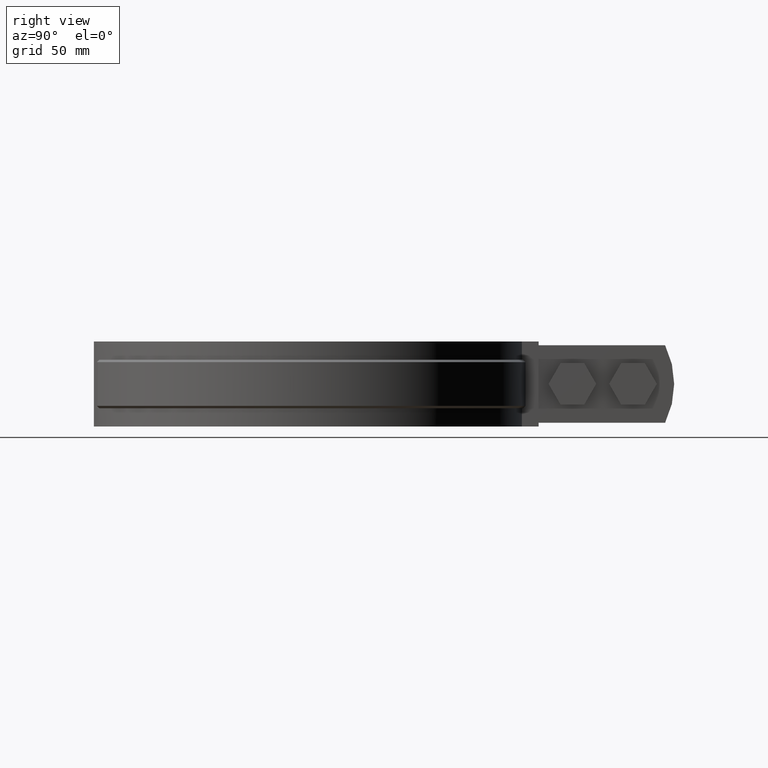
[diagram: clean part render]
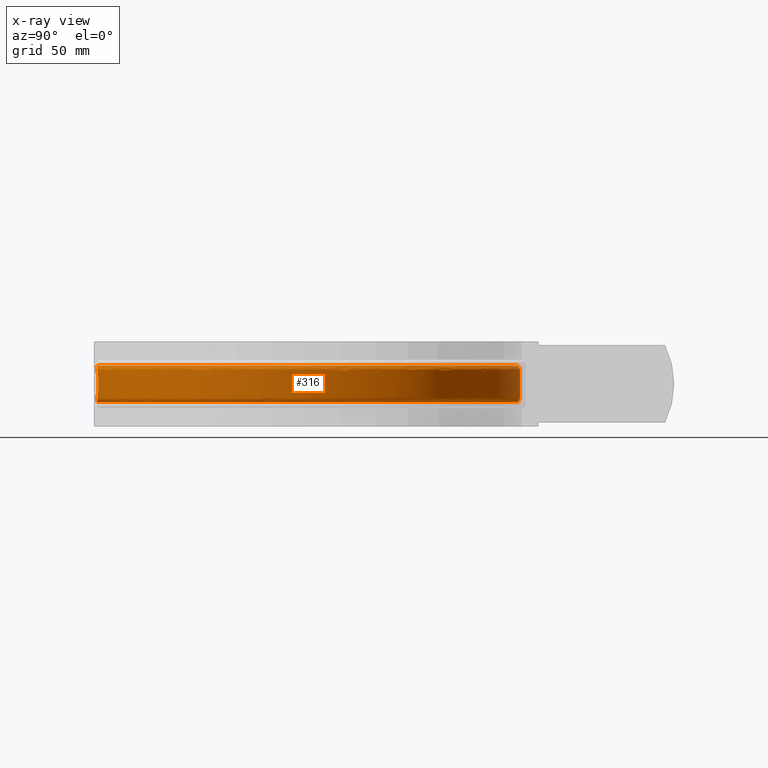
[diagram: x-ray — body ghosted, one internal face saturated and labeled with its STEP entity id]
A machine part, right view, then the same camera in x-ray: the body is ghosted and one INTERNAL B-rep face — a face not visible from any outside direction — is saturated and labeled: STEP entity #316.
In plain terms, the highlighted face is a freeform B-spline surface patch.
Its self-contained STEP definition (entity closure, byte-faithful):
#316 = ADVANCED_FACE( '', ( #470, #471 ), #472, .F. );
#470 = FACE_OUTER_BOUND( '', #802, .T. );
#471 = FACE_BOUND( '', #803, .T. );
#472 = B_SPLINE_SURFACE_WITH_KNOTS( '', 3, 3, ( ( #804, #805, #806, #807, #808, #809, #810, #811, #812, #813, #814, #815, #816, #817, #818, #819, #820 ), ( #821, #822, #823, #824, #825, #826, #827, #828, #829, #830, #831, #832, #833, #834, #835, #836, #837 ), ( #838, #839, #840, #841, #842, #843, #844, #845, #846, #847, #848, #849, #850, #851, #852, #853, #854 ), ( #855, #856, #857, #858, #859, #860, #861, #862, #863, #864, #865, #866, #867, #868, #869, #870, #871 ), ( #872, #873, #874, #875, #876, #877, #878, #879, #880, #881, #882, #883, #884, #885, #886, #887, #888 ), ( #889, #890, #891, #892, #893, #894, #895, #896, #897, #898, #899, #900, #901, #902, #903, #904, #905 ), ( #906, #907, #908, #909, #910, #911, #912, #913, #914, #915, #916, #917, #918, #919, #920, #921, #922 ), ( #923, #924, #925, #926, #927, #928, #929, #930, #931, #932, #933, #934, #935, #936, #937, #938, #939 ), ( #940, #941, #942, #943, #944, #945, #946, #947, #948, #949, #950, #951, #952, #953, #954, #955, #956 ), ( #957, #958, #959, #960, #961, #962, #963, #964, #965, #966, #967, #968, #969, #970, #971, #972, #973 ), ( #974, #975, #976, #977, #978, #979, #980, #981, #982, #983, #984, #985, #986, #987, #988, #989, #990 ), ( #991, #992, #993, #994, #995, #996, #997, #998, #999, #1000, #1001, #1002, #1003, #1004, #1005, #1006, #1007 ), ( #1008, #1009, #1010, #1011, #1012, #1013, #1014, #1015, #1016, #1017, #1018, #1019, #1020, #1021, #1022, #1023, #1024 ), ( #1025, #1026, #1027, #1028, #1029, #1030, #1031, #1032, #1033, #1034, #1035, #1036, #1037, #1038, #1039, #1040, #1041 ), ( #1042, #1043, #1044, #1045, #1046, #1047, #1048, #1049, #1050, #1051, #1052, #1053, #1054, #1055, #1056, #1057, #1058 ), ( #1059, #1060, #1061, #1062, #1063, #1064, #1065, #1066, #1067, #1068, #1069, #1070, #1071, #1072, #1073, #1074, #1075 ), ( #1076, #1077, #1078, #1079, #1080, #1081, #1082, #1083, #1084, #1085, #1086, #1087, #1088, #1089, #1090, #1091, #1092 ), ( #1093, #1094, #1095, #1096, #1097, #1098, #1099, #1100, #1101, #1102, #1103, #1104, #1105, #1106, #1107, #1108, #1109 ), ( #1110, #1111, #1112, #1113, #1114, #1115, #1116, #1117, #1118, #1119, #1120, #1121, #1122, #1123, #1124, #1125, #1126 ), ( #1127, #1128, #1129, #1130, #1131, #1132, #1133, #1134, #1135, #1136, #1137, #1138, #1139, #1140, #1141, #1142, #1143 ), ( #1144, #1145, #1146, #1147, #1148, #1149, #1150, #1151, #1152, #1153, #1154, #1155, #1156, #1157, #1158, #1159, #1160 ), ( #1161, #1162, #1163, #1164, #1165, #1166, #1167, #1168, #1169, #1170, #1171, #1172, #1173, #1174, #1175, #1176, #1177 ) ), .UNSPECIFIED., .F., .F., .F., ( 4, 3, 1, 1, 1, 3, 3, 1, 1, 1, 3, 4 ), ( 4, 1, 1, 1, 1, 1, 1, 1, 1, 1, 1, 1, 1, 1, 4 ), ( 0.000000000000000, 0.0909090909090909, 0.181818181818182, 0.272727272727273, 0.363636363636364, 0.454545454545455, 0.545454545454545, 0.636363636363636, 0.727272727272727, 0.818181818181818, 0.909090909090909, 1.00000000000000 ), ( 2.94823482327086, 4.00000000000000, 5.00000000000000, 6.00000000000000, 7.00000000000000, 8.00000000000000, 9.00000000000000, 10.0000000000000, 11.0000000000000, 12.0000000000000, 13.0000000000000, 14.0000000000000, 15.0000000000000, 16.0000000000000, 17.0000000000000 ), .UNSPECIFIED. );
#802 = EDGE_LOOP( '', ( #1885, #1886, #1887, #1888, #1889, #1890, #1891, #1892, #1893, #1894, #1895, #1896 ) );
#803 = EDGE_LOOP( '', ( #1897, #1898, #1899, #1900, #1901, #1902, #1903, #1904, #1905, #1906 ) );
#804 = CARTESIAN_POINT( '', ( -4.57364982241989, 84.5836677296671, -25.5000000000000 ) );
#805 = CARTESIAN_POINT( '', ( -17.6289075040332, 83.8786057571758, -25.5000000000000 ) );
#806 = CARTESIAN_POINT( '', ( -42.7949631398830, 76.4840463416153, -25.5000000000000 ) );
#807 = CARTESIAN_POINT( '', ( -71.5765301860860, 50.3150624062422, -25.5000000000000 ) );
#808 = CARTESIAN_POINT( '', ( -86.2010382005230, 14.9802997650067, -25.5000000000000 ) );
#809 = CARTESIAN_POINT( '', ( -84.3560386872710, -23.2170530818947, -25.5000000000000 ) );
#810 = CARTESIAN_POINT( '', ( -66.3958128703364, -56.9787657435621, -25.5000000000000 ) );
#811 = CARTESIAN_POINT( '', ( -35.7510476442179, -79.8551501338733, -25.5000000000000 ) );
#812 = CARTESIAN_POINT( '', ( 1.72366984717810, -87.4757758923789, -25.5000000000000 ) );
#813 = CARTESIAN_POINT( '', ( 38.8690932069321, -78.3847895444415, -25.5000000000000 ) );
#814 = CARTESIAN_POINT( '', ( 68.5888824890438, -54.3189745457490, -25.5000000000000 ) );
#815 = CARTESIAN_POINT( '', ( 85.2051688816525, -19.8758519526583, -25.5000000000000 ) );
#816 = CARTESIAN_POINT( '', ( 85.5439845515432, 18.3641744961299, -25.5000000000000 ) );
#817 = CARTESIAN_POINT( '', ( 69.5389085496657, 53.0967294981207, -25.5000000000000 ) );
#818 = CARTESIAN_POINT( '', ( 40.2539121158271, 77.6822908585602, -25.5000000000000 ) );
#819 = CARTESIAN_POINT( '', ( 15.5913724137731, 84.1869914504030, -25.5000000000000 ) );
#820 = CARTESIAN_POINT( '', ( 3.16786611963157, 84.6476903824596, -25.5000000000000 ) );
#821 = CARTESIAN_POINT( '', ( -4.55496444969862, 85.3881924763306, -24.6952621458756 ) );
#822 = CARTESIAN_POINT( '', ( -17.7369452271908, 84.6860194912804, -24.6952621458756 ) );
#823 = CARTESIAN_POINT( '', ( -43.1436016186587, 77.2397006891381, -24.6952621458756 ) );
#824 = CARTESIAN_POINT( '', ( -72.2180949023918, 50.8438436478181, -24.6952621458756 ) );
#825 = CARTESIAN_POINT( '', ( -87.0065669347491, 15.1850363934881, -24.6952621458756 ) );
#826 = CARTESIAN_POINT( '', ( -85.1720234413700, -23.3754745127051, -24.6952621458756 ) );
#827 = CARTESIAN_POINT( '', ( -67.0662632546146, -57.4700799662433, -24.6952621458756 ) );
#828 = CARTESIAN_POINT( '', ( -36.1479063010775, -80.5854951527206, -24.6952621458757 ) );
#829 = CARTESIAN_POINT( '', ( 1.67622671237653, -88.3056245388004, -24.6952621458756 ) );
#830 = CARTESIAN_POINT( '', ( 39.1801292474759, -79.1556054897633, -24.6952621458757 ) );
#831 = CARTESIAN_POINT( '', ( 69.1989697488409, -54.8834981667082, -24.6952621458756 ) );
#832 = CARTESIAN_POINT( '', ( 85.9977817595525, -20.1262382431158, -24.6952621458757 ) );
#833 = CARTESIAN_POINT( '', ( 86.3675983528669, 18.4757716958029, -24.6952621458756 ) );
#834 = CARTESIAN_POINT( '', ( 70.2365577638987, 53.5489467694972, -24.6952621458756 ) );
#835 = CARTESIAN_POINT( '', ( 40.6908980108431, 78.3888980374747, -24.6952621458756 ) );
#836 = CARTESIAN_POINT( '', ( 15.8024552811718, 84.9727924215859, -24.6952621458756 ) );
#837 = CARTESIAN_POINT( '', ( 3.25958140787082, 85.4471847975519, -24.6952621458756 ) );
#838 = CARTESIAN_POINT( '', ( -4.53627907697736, 86.1927172229942, -23.8905242917513 ) );
#839 = CARTESIAN_POINT( '', ( -17.8449829503484, 85.4934332253851, -23.8905242917513 ) );
#840 = CARTESIAN_POINT( '', ( -43.4922400974343, 77.9953550366609, -23.8905242917513 ) );
#841 = CARTESIAN_POINT( '', ( -72.8596596186976, 51.3726248893941, -23.8905242917513 ) );
#842 = CARTESIAN_POINT( '', ( -87.8120956689751, 15.3897730219694, -23.8905242917513 ) );
#843 = CARTESIAN_POINT( '', ( -85.9880081954690, -23.5338959435156, -23.8905242917513 ) );
#844 = CARTESIAN_POINT( '', ( -67.7367136388929, -57.9613941889244, -23.8905242917513 ) );
#845 = CARTESIAN_POINT( '', ( -36.5447649579370, -81.3158401715679, -23.8905242917513 ) );
#846 = CARTESIAN_POINT( '', ( 1.62878357757494, -89.1354731852219, -23.8905242917512 ) );
#847 = CARTESIAN_POINT( '', ( 39.4911652880198, -79.9264214350850, -23.8905242917513 ) );
#848 = CARTESIAN_POINT( '', ( 69.8090570086379, -55.4480217876674, -23.8905242917513 ) );
#849 = CARTESIAN_POINT( '', ( 86.7903946374526, -20.3766245335732, -23.8905242917513 ) );
#850 = CARTESIAN_POINT( '', ( 87.1912121541906, 18.5873688954759, -23.8905242917513 ) );
#851 = CARTESIAN_POINT( '', ( 70.9342069781318, 54.0011640408736, -23.8905242917513 ) );
#852 = CARTESIAN_POINT( '', ( 41.1278839058592, 79.0955052163892, -23.8905242917513 ) );
#853 = CARTESIAN_POINT( '', ( 16.0135381485704, 85.7585933927688, -23.8905242917513 ) );
#854 = CARTESIAN_POINT( '', ( 3.35129669611007, 86.2466792126443, -23.8905242917513 ) );
#855 = CARTESIAN_POINT( '', ( -4.51759370425610, 86.9972419696578, -23.0857864376269 ) );
#856 = CARTESIAN_POINT( '', ( -17.9530206735060, 86.3008469594897, -23.0857864376269 ) );
#857 = CARTESIAN_POINT( '', ( -43.8408785762099, 78.7510093841837, -23.0857864376269 ) );
#858 = CARTESIAN_POINT( '', ( -73.5012243350034, 51.9014061309700, -23.0857864376269 ) );
#859 = CARTESIAN_POINT( '', ( -88.6176244032012, 15.5945096504508, -23.0857864376269 ) );
#860 = CARTESIAN_POINT( '', ( -86.8039929495680, -23.6923173743260, -23.0857864376269 ) );
#861 = CARTESIAN_POINT( '', ( -68.4071640231710, -58.4527084116056, -23.0857864376269 ) );
#862 = CARTESIAN_POINT( '', ( -36.9416236147966, -82.0461851904151, -23.0857864376269 ) );
#863 = CARTESIAN_POINT( '', ( 1.58134044277337, -89.9653218316434, -23.0857864376269 ) );
#864 = CARTESIAN_POINT( '', ( 39.8022013285636, -80.6972373804067, -23.0857864376269 ) );
#865 = CARTESIAN_POINT( '', ( 70.4191442684350, -56.0125454086266, -23.0857864376269 ) );
#866 = CARTESIAN_POINT( '', ( 87.5830075153526, -20.6270108240307, -23.0857864376269 ) );
#867 = CARTESIAN_POINT( '', ( 88.0148259555143, 18.6989660951490, -23.0857864376269 ) );
#868 = CARTESIAN_POINT( '', ( 71.6318561923648, 54.4533813122500, -23.0857864376269 ) );
#869 = CARTESIAN_POINT( '', ( 41.5648698008752, 79.8021123953037, -23.0857864376269 ) );
#870 = CARTESIAN_POINT( '', ( 16.2246210159691, 86.5443943639516, -23.0857864376269 ) );
#871 = CARTESIAN_POINT( '', ( 3.44301198434932, 87.0461736277367, -23.0857864376269 ) );
#872 = CARTESIAN_POINT( '', ( -4.51544455110414, 87.0897767518596, -22.9932271442431 ) );
#873 = CARTESIAN_POINT( '', ( -17.9654469502905, 86.3937140270870, -22.9932271442431 ) );
#874 = CARTESIAN_POINT( '', ( -43.8809782572135, 78.8379231935573, -22.9932271442431 ) );
#875 = CARTESIAN_POINT( '', ( -73.5750157895707, 51.9622254621647, -22.9932271442431 ) );
#876 = CARTESIAN_POINT( '', ( -88.7102746619882, 15.6180580365059, -22.9932271442431 ) );
#877 = CARTESIAN_POINT( '', ( -86.8978458382625, -23.7105386815722, -22.9932271442431 ) );
#878 = CARTESIAN_POINT( '', ( -68.4842778478776, -58.5092183633218, -22.9932271442431 ) );
#879 = CARTESIAN_POINT( '', ( -36.9872694815393, -82.1301879728423, -22.9932271442431 ) );
#880 = CARTESIAN_POINT( '', ( 1.57588363095490, -90.0607693167276, -22.9932271442431 ) );
#881 = CARTESIAN_POINT( '', ( 39.8379760544350, -80.7858950455858, -22.9932271442431 ) );
#882 = CARTESIAN_POINT( '', ( 70.4893152506746, -56.0774757548091, -22.9932271442431 ) );
#883 = CARTESIAN_POINT( '', ( 87.6741722189009, -20.6558097403473, -22.9932271442431 ) );
#884 = CARTESIAN_POINT( '', ( 88.1095563215347, 18.7118017756037, -22.9932271442431 ) );
#885 = CARTESIAN_POINT( '', ( 71.7120983705701, 54.5053944130132, -22.9932271442431 ) );
#886 = CARTESIAN_POINT( '', ( 41.6151310200462, 79.8833849001885, -22.9932271442431 ) );
#887 = CARTESIAN_POINT( '', ( 16.2488993333761, 86.6347755759951, -22.9932271442431 ) );
#888 = CARTESIAN_POINT( '', ( 3.45356088822952, 87.1381298315439, -22.9932271442431 ) );
#889 = CARTESIAN_POINT( '', ( -4.51156959102015, 87.2566185551464, -22.7898759680773 ) );
#890 = CARTESIAN_POINT( '', ( -17.9878517409813, 86.5611549466551, -22.7898759680773 ) );
#891 = CARTESIAN_POINT( '', ( -43.9532786715082, 78.9946302861919, -22.7898759680773 ) );
#892 = CARTESIAN_POINT( '', ( -73.7080630508732, 52.0718837619928, -22.7898759680773 ) );
#893 = CARTESIAN_POINT( '', ( -88.8773246715435, 15.6605161814372, -22.7898759680773 ) );
#894 = CARTESIAN_POINT( '', ( -87.0670642102181, -23.7433920118213, -22.7898759680773 ) );
#895 = CARTESIAN_POINT( '', ( -68.6233153996635, -58.6111067778579, -22.7898759680773 ) );
#896 = CARTESIAN_POINT( '', ( -37.0695697640788, -82.2816464338423, -22.7898759680773 ) );
#897 = CARTESIAN_POINT( '', ( 1.56604490542569, -90.2328627733904, -22.7898759680773 ) );
#898 = CARTESIAN_POINT( '', ( 39.9024785002662, -80.9457463402204, -22.7898759680773 ) );
#899 = CARTESIAN_POINT( '', ( 70.6158347381223, -56.1945462853421, -22.7898759680773 ) );
#900 = CARTESIAN_POINT( '', ( 87.8385437468192, -20.7077346816142, -22.7898759680773 ) );
#901 = CARTESIAN_POINT( '', ( 88.2803568001957, 18.7349447281510, -22.7898759680773 ) );
#902 = CARTESIAN_POINT( '', ( 71.8567763975008, 54.5991749279654, -22.7898759680773 ) );
#903 = CARTESIAN_POINT( '', ( 41.7057528623671, 80.0299206238370, -22.7898759680773 ) );
#904 = CARTESIAN_POINT( '', ( 16.2926735570849, 86.7977344552593, -22.7898759680773 ) );
#905 = CARTESIAN_POINT( '', ( 3.47258074329584, 87.3039284480376, -22.7898759680773 ) );
#906 = CARTESIAN_POINT( '', ( -4.50725055836836, 87.4425805213247, -22.4418734431229 ) );
#907 = CARTESIAN_POINT( '', ( -18.0128241330713, 86.7477846881715, -22.4418734431229 ) );
#908 = CARTESIAN_POINT( '', ( -44.0338647532507, 79.1692960982744, -22.4418734431229 ) );
#909 = CARTESIAN_POINT( '', ( -73.8563576018731, 52.1941089636034, -22.4418734431229 ) );
#910 = CARTESIAN_POINT( '', ( -89.0635187045437, 15.7078400532497, -22.4418734431229 ) );
#911 = CARTESIAN_POINT( '', ( -87.2556751011485, -23.7800103518792, -22.4418734431229 ) );
#912 = CARTESIAN_POINT( '', ( -68.7782867317480, -58.7246716610265, -22.4418734431229 ) );
#913 = CARTESIAN_POINT( '', ( -37.1613017044952, -82.4504621182032, -22.4418734431229 ) );
#914 = CARTESIAN_POINT( '', ( 1.55507865651172, -90.4246782353248, -22.4418734431229 ) );
#915 = CARTESIAN_POINT( '', ( 39.9743729620484, -81.1239166815903, -22.4418734431229 ) );
#916 = CARTESIAN_POINT( '', ( 70.7568534287750, -56.3250331633941, -22.4418734431229 ) );
#917 = CARTESIAN_POINT( '', ( 88.0217523427061, -20.7656102498557, -22.4418734431229 ) );
#918 = CARTESIAN_POINT( '', ( 88.4707311081346, 18.7607398758544, -22.4418734431229 ) );
#919 = CARTESIAN_POINT( '', ( 72.0180346062999, 54.7037027417756, -22.4418734431229 ) );
#920 = CARTESIAN_POINT( '', ( 41.8067600179162, 80.1932494224247, -22.4418734431229 ) );
#921 = CARTESIAN_POINT( '', ( 16.3414643310304, 86.9793685121755, -22.4418734431229 ) );
#922 = CARTESIAN_POINT( '', ( 3.49378028426746, 87.4887276776395, -22.4418734431229 ) );
#923 = CARTESIAN_POINT( '', ( -4.50459091119341, 87.5570953346794, -22.0642686993349 ) );
#924 = CARTESIAN_POINT( '', ( -18.0282020561918, 86.8627107155492, -22.0642686993349 ) );
#925 = CARTESIAN_POINT( '', ( -44.0834894173656, 79.2768547742830, -22.0642686993349 ) );
#926 = CARTESIAN_POINT( '', ( -73.9476769354890, 52.2693748711291, -22.0642686993349 ) );
#927 = CARTESIAN_POINT( '', ( -89.1781764239418, 15.7369819496235, -22.0642686993349 ) );
#928 = CARTESIAN_POINT( '', ( -87.3718211143115, -23.8025598143486, -22.0642686993349 ) );
#929 = CARTESIAN_POINT( '', ( -68.8737176068549, -58.7946045707875, -22.0642686993349 ) );
#930 = CARTESIAN_POINT( '', ( -37.2177899544924, -82.5544183033482, -22.0642686993349 ) );
#931 = CARTESIAN_POINT( '', ( 1.54832567377340, -90.5427976135686, -22.0642686993349 ) );
#932 = CARTESIAN_POINT( '', ( 40.0186453530186, -81.2336334360785, -22.0642686993349 ) );
#933 = CARTESIAN_POINT( '', ( 70.8436923097112, -56.4053865861528, -22.0642686993349 ) );
#934 = CARTESIAN_POINT( '', ( 88.1345716390071, -20.8012498488081, -22.0642686993349 ) );
#935 = CARTESIAN_POINT( '', ( 88.5879630281297, 18.7766244493799, -22.0642686993349 ) );
#936 = CARTESIAN_POINT( '', ( 72.1173369209724, 54.7680706517029, -22.0642686993349 ) );
#937 = CARTESIAN_POINT( '', ( 41.8689599171908, 80.2938267999934, -22.0642686993349 ) );
#938 = CARTESIAN_POINT( '', ( 16.3715095412775, 87.0912182121657, -22.0642686993349 ) );
#939 = CARTESIAN_POINT( '', ( 3.50683489714052, 87.6025264813458, -22.0642686993349 ) );
#940 = CARTESIAN_POINT( '', ( -4.50399220922760, 87.5828732816625, -21.8024714832809 ) );
#941 = CARTESIAN_POINT( '', ( -18.0316637156513, 86.8885812291878, -21.8024714832809 ) );
#942 = CARTESIAN_POINT( '', ( -44.0946602163490, 79.3010668545065, -21.8024714832808 ) );
#943 = CARTESIAN_POINT( '', ( -73.9682334457911, 52.2863176623453, -21.8024714832808 ) );
#944 = CARTESIAN_POINT( '', ( -89.2039865399020, 15.7435419590905, -21.8024714832808 ) );
#945 = CARTESIAN_POINT( '', ( -87.3979662538083, -23.8076358288048, -21.8024714832808 ) );
#946 = CARTESIAN_POINT( '', ( -68.8951996489330, -58.8103468733541, -21.8024714832808 ) );
#947 = CARTESIAN_POINT( '', ( -37.2305057863655, -82.5778194420369, -21.8024714832809 ) );
#948 = CARTESIAN_POINT( '', ( 1.54680553829131, -90.5693869689616, -21.8024714832808 ) );
#949 = CARTESIAN_POINT( '', ( 40.0286113243529, -81.2583313122528, -21.8024714832809 ) );
#950 = CARTESIAN_POINT( '', ( 70.8632402441946, -56.4234746064805, -21.8024714832808 ) );
#951 = CARTESIAN_POINT( '', ( 88.1599679152923, -20.8092725287163, -21.8024714832809 ) );
#952 = CARTESIAN_POINT( '', ( 88.6143526115367, 18.7802001587767, -21.8024714832808 ) );
#953 = CARTESIAN_POINT( '', ( 72.1396904464940, 54.7825602406120, -21.8024714832808 ) );
#954 = CARTESIAN_POINT( '', ( 41.8829614743596, 80.3164673495494, -21.8024714832809 ) );
#955 = CARTESIAN_POINT( '', ( 16.3782728919232, 87.1163962267121, -21.8024714832808 ) );
#956 = CARTESIAN_POINT( '', ( 3.50977356602246, 87.6281432504148, -21.8024714832808 ) );
#957 = CARTESIAN_POINT( '', ( -4.50399220922760, 87.5828732816625, -21.6715728752538 ) );
#958 = CARTESIAN_POINT( '', ( -18.0316637156513, 86.8885812291878, -21.6715728752538 ) );
#959 = CARTESIAN_POINT( '', ( -44.0946602163490, 79.3010668545065, -21.6715728752538 ) );
#960 = CARTESIAN_POINT( '', ( -73.9682334457911, 52.2863176623453, -21.6715728752538 ) );
#961 = CARTESIAN_POINT( '', ( -89.2039865399020, 15.7435419590905, -21.6715728752538 ) );
#962 = CARTESIAN_POINT( '', ( -87.3979662538083, -23.8076358288048, -21.6715728752538 ) );
#963 = CARTESIAN_POINT( '', ( -68.8951996489330, -58.8103468733541, -21.6715728752538 ) );
#964 = CARTESIAN_POINT( '', ( -37.2305057863655, -82.5778194420369, -21.6715728752538 ) );
#965 = CARTESIAN_POINT( '', ( 1.54680553829131, -90.5693869689616, -21.6715728752538 ) );
#966 = CARTESIAN_POINT( '', ( 40.0286113243529, -81.2583313122528, -21.6715728752538 ) );
#967 = CARTESIAN_POINT( '', ( 70.8632402441946, -56.4234746064805, -21.6715728752538 ) );
#968 = CARTESIAN_POINT( '', ( 88.1599679152923, -20.8092725287163, -21.6715728752538 ) );
#969 = CARTESIAN_POINT( '', ( 88.6143526115367, 18.7802001587767, -21.6715728752538 ) );
#970 = CARTESIAN_POINT( '', ( 72.1396904464940, 54.7825602406120, -21.6715728752538 ) );
#971 = CARTESIAN_POINT( '', ( 41.8829614743596, 80.3164673495494, -21.6715728752538 ) );
#972 = CARTESIAN_POINT( '', ( 16.3782728919232, 87.1163962267121, -21.6715728752538 ) );
#973 = CARTESIAN_POINT( '', ( 3.50977356602246, 87.6281432504148, -21.6715728752538 ) );
#974 = CARTESIAN_POINT( '', ( -4.50399220922760, 87.5828732816625, -17.8905242917513 ) );
#975 = CARTESIAN_POINT( '', ( -18.0316637156513, 86.8885812291878, -17.8905242917513 ) );
#976 = CARTESIAN_POINT( '', ( -44.0946602163490, 79.3010668545065, -17.8905242917513 ) );
#977 = CARTESIAN_POINT( '', ( -73.9682334457911, 52.2863176623453, -17.8905242917513 ) );
#978 = CARTESIAN_POINT( '', ( -89.2039865399020, 15.7435419590905, -17.8905242917513 ) );
#979 = CARTESIAN_POINT( '', ( -87.3979662538083, -23.8076358288048, -17.8905242917513 ) );
#980 = CARTESIAN_POINT( '', ( -68.8951996489330, -58.8103468733541, -17.8905242917513 ) );
#981 = CARTESIAN_POINT( '', ( -37.2305057863655, -82.5778194420369, -17.8905242917513 ) );
#982 = CARTESIAN_POINT( '', ( 1.54680553829131, -90.5693869689616, -17.8905242917513 ) );
#983 = CARTESIAN_POINT( '', ( 40.0286113243529, -81.2583313122528, -17.8905242917513 ) );
#984 = CARTESIAN_POINT( '', ( 70.8632402441946, -56.4234746064805, -17.8905242917513 ) );
#985 = CARTESIAN_POINT( '', ( 88.1599679152923, -20.8092725287163, -17.8905242917513 ) );
#986 = CARTESIAN_POINT( '', ( 88.6143526115367, 18.7802001587767, -17.8905242917513 ) );
#987 = CARTESIAN_POINT( '', ( 72.1396904464940, 54.7825602406120, -17.8905242917513 ) );
#988 = CARTESIAN_POINT( '', ( 41.8829614743596, 80.3164673495494, -17.8905242917513 ) );
#989 = CARTESIAN_POINT( '', ( 16.3782728919232, 87.1163962267121, -17.8905242917513 ) );
#990 = CARTESIAN_POINT( '', ( 3.50977356602246, 87.6281432504148, -17.8905242917513 ) );
#991 = CARTESIAN_POINT( '', ( -4.50399220922760, 87.5828732816625, -14.1094757082487 ) );
#992 = CARTESIAN_POINT( '', ( -18.0316637156513, 86.8885812291878, -14.1094757082487 ) );
#993 = CARTESIAN_POINT( '', ( -44.0946602163490, 79.3010668545065, -14.1094757082487 ) );
#994 = CARTESIAN_POINT( '', ( -73.9682334457911, 52.2863176623453, -14.1094757082487 ) );
#995 = CARTESIAN_POINT( '', ( -89.2039865399020, 15.7435419590905, -14.1094757082487 ) );
#996 = CARTESIAN_POINT( '', ( -87.3979662538083, -23.8076358288048, -14.1094757082487 ) );
#997 = CARTESIAN_POINT( '', ( -68.8951996489330, -58.8103468733541, -14.1094757082487 ) );
#998 = CARTESIAN_POINT( '', ( -37.2305057863655, -82.5778194420369, -14.1094757082487 ) );
#999 = CARTESIAN_POINT( '', ( 1.54680553829131, -90.5693869689616, -14.1094757082487 ) );
#1000 = CARTESIAN_POINT( '', ( 40.0286113243529, -81.2583313122528, -14.1094757082488 ) );
#1001 = CARTESIAN_POINT( '', ( 70.8632402441946, -56.4234746064805, -14.1094757082487 ) );
#1002 = CARTESIAN_POINT( '', ( 88.1599679152923, -20.8092725287163, -14.1094757082488 ) );
#1003 = CARTESIAN_POINT( '', ( 88.6143526115367, 18.7802001587767, -14.1094757082487 ) );
#1004 = CARTESIAN_POINT( '', ( 72.1396904464940, 54.7825602406120, -14.1094757082487 ) );
#1005 = CARTESIAN_POINT( '', ( 41.8829614743596, 80.3164673495494, -14.1094757082487 ) );
#1006 = CARTESIAN_POINT( '', ( 16.3782728919232, 87.1163962267121, -14.1094757082487 ) );
#1007 = CARTESIAN_POINT( '', ( 3.50977356602246, 87.6281432504148, -14.1094757082487 ) );
#1008 = CARTESIAN_POINT( '', ( -4.50399220922760, 87.5828732816625, -10.3284271247462 ) );
#1009 = CARTESIAN_POINT( '', ( -18.0316637156513, 86.8885812291878, -10.3284271247462 ) );
#1010 = CARTESIAN_POINT( '', ( -44.0946602163490, 79.3010668545065, -10.3284271247462 ) );
#1011 = CARTESIAN_POINT( '', ( -73.9682334457911, 52.2863176623453, -10.3284271247462 ) );
#1012 = CARTESIAN_POINT( '', ( -89.2039865399020, 15.7435419590905, -10.3284271247462 ) );
#1013 = CARTESIAN_POINT( '', ( -87.3979662538083, -23.8076358288048, -10.3284271247462 ) );
#1014 = CARTESIAN_POINT( '', ( -68.8951996489330, -58.8103468733541, -10.3284271247462 ) );
#1015 = CARTESIAN_POINT( '', ( -37.2305057863655, -82.5778194420369, -10.3284271247462 ) );
#1016 = CARTESIAN_POINT( '', ( 1.54680553829131, -90.5693869689616, -10.3284271247462 ) );
#1017 = CARTESIAN_POINT( '', ( 40.0286113243529, -81.2583313122528, -10.3284271247462 ) );
#1018 = CARTESIAN_POINT( '', ( 70.8632402441946, -56.4234746064805, -10.3284271247462 ) );
#1019 = CARTESIAN_POINT( '', ( 88.1599679152923, -20.8092725287163, -10.3284271247462 ) );
#1020 = CARTESIAN_POINT( '', ( 88.6143526115367, 18.7802001587767, -10.3284271247462 ) );
#1021 = CARTESIAN_POINT( '', ( 72.1396904464940, 54.7825602406120, -10.3284271247462 ) );
#1022 = CARTESIAN_POINT( '', ( 41.8829614743596, 80.3164673495494, -10.3284271247462 ) );
#1023 = CARTESIAN_POINT( '', ( 16.3782728919232, 87.1163962267121, -10.3284271247462 ) );
#1024 = CARTESIAN_POINT( '', ( 3.50977356602246, 87.6281432504148, -10.3284271247462 ) );
#1025 = CARTESIAN_POINT( '', ( -4.50399220922760, 87.5828732816625, -10.1975285167192 ) );
#1026 = CARTESIAN_POINT( '', ( -18.0316637156513, 86.8885812291878, -10.1975285167192 ) );
#1027 = CARTESIAN_POINT( '', ( -44.0946602163490, 79.3010668545065, -10.1975285167192 ) );
#1028 = CARTESIAN_POINT( '', ( -73.9682334457911, 52.2863176623453, -10.1975285167192 ) );
#1029 = CARTESIAN_POINT( '', ( -89.2039865399020, 15.7435419590905, -10.1975285167192 ) );
#1030 = CARTESIAN_POINT( '', ( -87.3979662538083, -23.8076358288048, -10.1975285167192 ) );
#1031 = CARTESIAN_POINT( '', ( -68.8951996489330, -58.8103468733541, -10.1975285167192 ) );
#1032 = CARTESIAN_POINT( '', ( -37.2305057863655, -82.5778194420369, -10.1975285167192 ) );
#1033 = CARTESIAN_POINT( '', ( 1.54680553829131, -90.5693869689616, -10.1975285167192 ) );
#1034 = CARTESIAN_POINT( '', ( 40.0286113243529, -81.2583313122528, -10.1975285167192 ) );
#1035 = CARTESIAN_POINT( '', ( 70.8632402441946, -56.4234746064805, -10.1975285167192 ) );
#1036 = CARTESIAN_POINT( '', ( 88.1599679152923, -20.8092725287163, -10.1975285167192 ) );
#1037 = CARTESIAN_POINT( '', ( 88.6143526115367, 18.7802001587767, -10.1975285167192 ) );
#1038 = CARTESIAN_POINT( '', ( 72.1396904464940, 54.7825602406120, -10.1975285167192 ) );
#1039 = CARTESIAN_POINT( '', ( 41.8829614743596, 80.3164673495494, -10.1975285167192 ) );
#1040 = CARTESIAN_POINT( '', ( 16.3782728919232, 87.1163962267121, -10.1975285167192 ) );
#1041 = CARTESIAN_POINT( '', ( 3.50977356602246, 87.6281432504148, -10.1975285167192 ) );
#1042 = CARTESIAN_POINT( '', ( -4.50459091119341, 87.5570953346794, -9.93573130066511 ) );
#1043 = CARTESIAN_POINT( '', ( -18.0282020561918, 86.8627107155492, -9.93573130066511 ) );
#1044 = CARTESIAN_POINT( '', ( -44.0834894173656, 79.2768547742830, -9.93573130066511 ) );
#1045 = CARTESIAN_POINT( '', ( -73.9476769354890, 52.2693748711291, -9.93573130066510 ) );
#1046 = CARTESIAN_POINT( '', ( -89.1781764239418, 15.7369819496235, -9.93573130066510 ) );
#1047 = CARTESIAN_POINT( '', ( -87.3718211143115, -23.8025598143486, -9.93573130066510 ) );
#1048 = CARTESIAN_POINT( '', ( -68.8737176068549, -58.7946045707875, -9.93573130066510 ) );
#1049 = CARTESIAN_POINT( '', ( -37.2177899544924, -82.5544183033482, -9.93573130066511 ) );
#1050 = CARTESIAN_POINT( '', ( 1.54832567377340, -90.5427976135686, -9.93573130066510 ) );
#1051 = CARTESIAN_POINT( '', ( 40.0186453530186, -81.2336334360785, -9.93573130066511 ) );
#1052 = CARTESIAN_POINT( '', ( 70.8436923097112, -56.4053865861528, -9.93573130066511 ) );
#1053 = CARTESIAN_POINT( '', ( 88.1345716390071, -20.8012498488081, -9.93573130066511 ) );
#1054 = CARTESIAN_POINT( '', ( 88.5879630281297, 18.7766244493799, -9.93573130066511 ) );
#1055 = CARTESIAN_POINT( '', ( 72.1173369209724, 54.7680706517029, -9.93573130066510 ) );
#1056 = CARTESIAN_POINT( '', ( 41.8689599171908, 80.2938267999934, -9.93573130066511 ) );
#1057 = CARTESIAN_POINT( '', ( 16.3715095412775, 87.0912182121657, -9.93573130066510 ) );
#1058 = CARTESIAN_POINT( '', ( 3.50683489714052, 87.6025264813458, -9.93573130066510 ) );
#1059 = CARTESIAN_POINT( '', ( -4.50725055836836, 87.4425805213247, -9.55812655687709 ) );
#1060 = CARTESIAN_POINT( '', ( -18.0128241330713, 86.7477846881715, -9.55812655687709 ) );
#1061 = CARTESIAN_POINT( '', ( -44.0338647532507, 79.1692960982744, -9.55812655687708 ) );
#1062 = CARTESIAN_POINT( '', ( -73.8563576018731, 52.1941089636034, -9.55812655687708 ) );
#1063 = CARTESIAN_POINT( '', ( -89.0635187045437, 15.7078400532497, -9.55812655687708 ) );
#1064 = CARTESIAN_POINT( '', ( -87.2556751011485, -23.7800103518792, -9.55812655687708 ) );
#1065 = CARTESIAN_POINT( '', ( -68.7782867317480, -58.7246716610265, -9.55812655687708 ) );
#1066 = CARTESIAN_POINT( '', ( -37.1613017044952, -82.4504621182032, -9.55812655687709 ) );
#1067 = CARTESIAN_POINT( '', ( 1.55507865651172, -90.4246782353248, -9.55812655687708 ) );
#1068 = CARTESIAN_POINT( '', ( 39.9743729620484, -81.1239166815903, -9.55812655687709 ) );
#1069 = CARTESIAN_POINT( '', ( 70.7568534287750, -56.3250331633941, -9.55812655687708 ) );
#1070 = CARTESIAN_POINT( '', ( 88.0217523427061, -20.7656102498557, -9.55812655687709 ) );
#1071 = CARTESIAN_POINT( '', ( 88.4707311081346, 18.7607398758544, -9.55812655687708 ) );
#1072 = CARTESIAN_POINT( '', ( 72.0180346062999, 54.7037027417756, -9.55812655687708 ) );
#1073 = CARTESIAN_POINT( '', ( 41.8067600179162, 80.1932494224247, -9.55812655687709 ) );
#1074 = CARTESIAN_POINT( '', ( 16.3414643310304, 86.9793685121755, -9.55812655687708 ) );
#1075 = CARTESIAN_POINT( '', ( 3.49378028426746, 87.4887276776395, -9.55812655687708 ) );
#1076 = CARTESIAN_POINT( '', ( -4.51156959102015, 87.2566185551464, -9.21012403192274 ) );
#1077 = CARTESIAN_POINT( '', ( -17.9878517409813, 86.5611549466551, -9.21012403192274 ) );
#1078 = CARTESIAN_POINT( '', ( -43.9532786715082, 78.9946302861919, -9.21012403192274 ) );
#1079 = CARTESIAN_POINT( '', ( -73.7080630508732, 52.0718837619928, -9.21012403192274 ) );
#1080 = CARTESIAN_POINT( '', ( -88.8773246715434, 15.6605161814372, -9.21012403192273 ) );
#1081 = CARTESIAN_POINT( '', ( -87.0670642102181, -23.7433920118213, -9.21012403192274 ) );
#1082 = CARTESIAN_POINT( '', ( -68.6233153996635, -58.6111067778579, -9.21012403192274 ) );
#1083 = CARTESIAN_POINT( '', ( -37.0695697640788, -82.2816464338423, -9.21012403192274 ) );
#1084 = CARTESIAN_POINT( '', ( 1.56604490542569, -90.2328627733904, -9.21012403192273 ) );
#1085 = CARTESIAN_POINT( '', ( 39.9024785002662, -80.9457463402204, -9.21012403192274 ) );
#1086 = CARTESIAN_POINT( '', ( 70.6158347381223, -56.1945462853421, -9.21012403192274 ) );
#1087 = CARTESIAN_POINT( '', ( 87.8385437468192, -20.7077346816142, -9.21012403192274 ) );
#1088 = CARTESIAN_POINT( '', ( 88.2803568001957, 18.7349447281510, -9.21012403192274 ) );
#1089 = CARTESIAN_POINT( '', ( 71.8567763975008, 54.5991749279655, -9.21012403192274 ) );
#1090 = CARTESIAN_POINT( '', ( 41.7057528623671, 80.0299206238370, -9.21012403192274 ) );
#1091 = CARTESIAN_POINT( '', ( 16.2926735570849, 86.7977344552593, -9.21012403192274 ) );
#1092 = CARTESIAN_POINT( '', ( 3.47258074329583, 87.3039284480376, -9.21012403192274 ) );
#1093 = CARTESIAN_POINT( '', ( -4.51544455110414, 87.0897767518596, -9.00677285575691 ) );
#1094 = CARTESIAN_POINT( '', ( -17.9654469502905, 86.3937140270870, -9.00677285575691 ) );
#1095 = CARTESIAN_POINT( '', ( -43.8809782572135, 78.8379231935573, -9.00677285575691 ) );
#1096 = CARTESIAN_POINT( '', ( -73.5750157895707, 51.9622254621647, -9.00677285575691 ) );
#1097 = CARTESIAN_POINT( '', ( -88.7102746619882, 15.6180580365059, -9.00677285575691 ) );
#1098 = CARTESIAN_POINT( '', ( -86.8978458382625, -23.7105386815722, -9.00677285575691 ) );
#1099 = CARTESIAN_POINT( '', ( -68.4842778478776, -58.5092183633218, -9.00677285575691 ) );
#1100 = CARTESIAN_POINT( '', ( -36.9872694815393, -82.1301879728423, -9.00677285575691 ) );
#1101 = CARTESIAN_POINT( '', ( 1.57588363095490, -90.0607693167276, -9.00677285575691 ) );
#1102 = CARTESIAN_POINT( '', ( 39.8379760544350, -80.7858950455858, -9.00677285575692 ) );
#1103 = CARTESIAN_POINT( '', ( 70.4893152506746, -56.0774757548091, -9.00677285575691 ) );
#1104 = CARTESIAN_POINT( '', ( 87.6741722189009, -20.6558097403473, -9.00677285575691 ) );
#1105 = CARTESIAN_POINT( '', ( 88.1095563215347, 18.7118017756037, -9.00677285575691 ) );
#1106 = CARTESIAN_POINT( '', ( 71.7120983705701, 54.5053944130133, -9.00677285575691 ) );
#1107 = CARTESIAN_POINT( '', ( 41.6151310200462, 79.8833849001885, -9.00677285575691 ) );
#1108 = CARTESIAN_POINT( '', ( 16.2488993333761, 86.6347755759951, -9.00677285575691 ) );
#1109 = CARTESIAN_POINT( '', ( 3.45356088822952, 87.1381298315439, -9.00677285575691 ) );
#1110 = CARTESIAN_POINT( '', ( -4.51759370425610, 86.9972419696578, -8.91421356237312 ) );
#1111 = CARTESIAN_POINT( '', ( -17.9530206735060, 86.3008469594897, -8.91421356237312 ) );
#1112 = CARTESIAN_POINT( '', ( -43.8408785762100, 78.7510093841837, -8.91421356237311 ) );
#1113 = CARTESIAN_POINT( '', ( -73.5012243350034, 51.9014061309700, -8.91421356237312 ) );
#1114 = CARTESIAN_POINT( '', ( -88.6176244032012, 15.5945096504508, -8.91421356237311 ) );
#1115 = CARTESIAN_POINT( '', ( -86.8039929495680, -23.6923173743260, -8.91421356237312 ) );
#1116 = CARTESIAN_POINT( '', ( -68.4071640231710, -58.4527084116056, -8.91421356237311 ) );
#1117 = CARTESIAN_POINT( '', ( -36.9416236147966, -82.0461851904152, -8.91421356237312 ) );
#1118 = CARTESIAN_POINT( '', ( 1.58134044277335, -89.9653218316434, -8.91421356237311 ) );
#1119 = CARTESIAN_POINT( '', ( 39.8022013285636, -80.6972373804067, -8.91421356237312 ) );
#1120 = CARTESIAN_POINT( '', ( 70.4191442684350, -56.0125454086266, -8.91421356237312 ) );
#1121 = CARTESIAN_POINT( '', ( 87.5830075153526, -20.6270108240307, -8.91421356237312 ) );
#1122 = CARTESIAN_POINT( '', ( 88.0148259555143, 18.6989660951490, -8.91421356237311 ) );
#1123 = CARTESIAN_POINT( '', ( 71.6318561923648, 54.4533813122500, -8.91421356237311 ) );
#1124 = CARTESIAN_POINT( '', ( 41.5648698008752, 79.8021123953037, -8.91421356237312 ) );
#1125 = CARTESIAN_POINT( '', ( 16.2246210159691, 86.5443943639516, -8.91421356237311 ) );
#1126 = CARTESIAN_POINT( '', ( 3.44301198434932, 87.0461736277367, -8.91421356237311 ) );
#1127 = CARTESIAN_POINT( '', ( -4.53627907697736, 86.1927172229942, -8.10947570824875 ) );
#1128 = CARTESIAN_POINT( '', ( -17.8449829503484, 85.4934332253851, -8.10947570824875 ) );
#1129 = CARTESIAN_POINT( '', ( -43.4922400974343, 77.9953550366609, -8.10947570824875 ) );
#1130 = CARTESIAN_POINT( '', ( -72.8596596186976, 51.3726248893941, -8.10947570824875 ) );
#1131 = CARTESIAN_POINT( '', ( -87.8120956689751, 15.3897730219694, -8.10947570824875 ) );
#1132 = CARTESIAN_POINT( '', ( -85.9880081954690, -23.5338959435156, -8.10947570824875 ) );
#1133 = CARTESIAN_POINT( '', ( -67.7367136388929, -57.9613941889244, -8.10947570824875 ) );
#1134 = CARTESIAN_POINT( '', ( -36.5447649579370, -81.3158401715679, -8.10947570824876 ) );
#1135 = CARTESIAN_POINT( '', ( 1.62878357757494, -89.1354731852219, -8.10947570824875 ) );
#1136 = CARTESIAN_POINT( '', ( 39.4911652880198, -79.9264214350850, -8.10947570824876 ) );
#1137 = CARTESIAN_POINT( '', ( 69.8090570086379, -55.4480217876674, -8.10947570824875 ) );
#1138 = CARTESIAN_POINT( '', ( 86.7903946374526, -20.3766245335732, -8.10947570824876 ) );
#1139 = CARTESIAN_POINT( '', ( 87.1912121541906, 18.5873688954759, -8.10947570824875 ) );
#1140 = CARTESIAN_POINT( '', ( 70.9342069781318, 54.0011640408736, -8.10947570824875 ) );
#1141 = CARTESIAN_POINT( '', ( 41.1278839058592, 79.0955052163892, -8.10947570824875 ) );
#1142 = CARTESIAN_POINT( '', ( 16.0135381485704, 85.7585933927688, -8.10947570824875 ) );
#1143 = CARTESIAN_POINT( '', ( 3.35129669611007, 86.2466792126443, -8.10947570824875 ) );
#1144 = CARTESIAN_POINT( '', ( -4.55496444969862, 85.3881924763306, -7.30473785412439 ) );
#1145 = CARTESIAN_POINT( '', ( -17.7369452271908, 84.6860194912804, -7.30473785412439 ) );
#1146 = CARTESIAN_POINT( '', ( -43.1436016186587, 77.2397006891381, -7.30473785412438 ) );
#1147 = CARTESIAN_POINT( '', ( -72.2180949023918, 50.8438436478181, -7.30473785412438 ) );
#1148 = CARTESIAN_POINT( '', ( -87.0065669347491, 15.1850363934881, -7.30473785412438 ) );
#1149 = CARTESIAN_POINT( '', ( -85.1720234413700, -23.3754745127051, -7.30473785412438 ) );
#1150 = CARTESIAN_POINT( '', ( -67.0662632546146, -57.4700799662433, -7.30473785412438 ) );
#1151 = CARTESIAN_POINT( '', ( -36.1479063010775, -80.5854951527206, -7.30473785412439 ) );
#1152 = CARTESIAN_POINT( '', ( 1.67622671237653, -88.3056245388004, -7.30473785412438 ) );
#1153 = CARTESIAN_POINT( '', ( 39.1801292474759, -79.1556054897633, -7.30473785412439 ) );
#1154 = CARTESIAN_POINT( '', ( 69.1989697488409, -54.8834981667082, -7.30473785412439 ) );
#1155 = CARTESIAN_POINT( '', ( 85.9977817595525, -20.1262382431158, -7.30473785412439 ) );
#1156 = CARTESIAN_POINT( '', ( 86.3675983528669, 18.4757716958029, -7.30473785412438 ) );
#1157 = CARTESIAN_POINT( '', ( 70.2365577638987, 53.5489467694972, -7.30473785412438 ) );
#1158 = CARTESIAN_POINT( '', ( 40.6908980108431, 78.3888980374747, -7.30473785412439 ) );
#1159 = CARTESIAN_POINT( '', ( 15.8024552811718, 84.9727924215859, -7.30473785412438 ) );
#1160 = CARTESIAN_POINT( '', ( 3.25958140787082, 85.4471847975519, -7.30473785412438 ) );
#1161 = CARTESIAN_POINT( '', ( -4.57364982241989, 84.5836677296671, -6.50000000000002 ) );
#1162 = CARTESIAN_POINT( '', ( -17.6289075040332, 83.8786057571758, -6.50000000000002 ) );
#1163 = CARTESIAN_POINT( '', ( -42.7949631398831, 76.4840463416153, -6.50000000000002 ) );
#1164 = CARTESIAN_POINT( '', ( -71.5765301860860, 50.3150624062422, -6.50000000000002 ) );
#1165 = CARTESIAN_POINT( '', ( -86.2010382005230, 14.9802997650067, -6.50000000000001 ) );
#1166 = CARTESIAN_POINT( '', ( -84.3560386872710, -23.2170530818947, -6.50000000000002 ) );
#1167 = CARTESIAN_POINT( '', ( -66.3958128703364, -56.9787657435621, -6.50000000000002 ) );
#1168 = CARTESIAN_POINT( '', ( -35.7510476442179, -79.8551501338733, -6.50000000000002 ) );
#1169 = CARTESIAN_POINT( '', ( 1.72366984717810, -87.4757758923789, -6.50000000000001 ) );
#1170 = CARTESIAN_POINT( '', ( 38.8690932069321, -78.3847895444415, -6.50000000000002 ) );
#1171 = CARTESIAN_POINT( '', ( 68.5888824890438, -54.3189745457490, -6.50000000000002 ) );
#1172 = CARTESIAN_POINT( '', ( 85.2051688816525, -19.8758519526583, -6.50000000000002 ) );
#1173 = CARTESIAN_POINT( '', ( 85.5439845515432, 18.3641744961299, -6.50000000000002 ) );
#1174 = CARTESIAN_POINT( '', ( 69.5389085496657, 53.0967294981207, -6.50000000000002 ) );
#1175 = CARTESIAN_POINT( '', ( 40.2539121158271, 77.6822908585602, -6.50000000000002 ) );
#1176 = CARTESIAN_POINT( '', ( 15.5913724137731, 84.1869914504030, -6.50000000000002 ) );
#1177 = CARTESIAN_POINT( '', ( 3.16786611963157, 84.6476903824596, -6.50000000000002 ) );
#1885 = ORIENTED_EDGE( '', *, *, #4622, .T. );
#1886 = ORIENTED_EDGE( '', *, *, #4623, .T. );
#1887 = ORIENTED_EDGE( '', *, *, #4624, .T. );
#1888 = ORIENTED_EDGE( '', *, *, #4625, .T. );
#1889 = ORIENTED_EDGE( '', *, *, #4626, .T. );
#1890 = ORIENTED_EDGE( '', *, *, #4627, .T. );
#1891 = ORIENTED_EDGE( '', *, *, #4628, .T. );
#1892 = ORIENTED_EDGE( '', *, *, #4629, .T. );
#1893 = ORIENTED_EDGE( '', *, *, #4630, .T. );
#1894 = ORIENTED_EDGE( '', *, *, #4631, .T. );
#1895 = ORIENTED_EDGE( '', *, *, #4632, .T. );
#1896 = ORIENTED_EDGE( '', *, *, #4633, .T. );
#1897 = ORIENTED_EDGE( '', *, *, #4634, .T. );
#1898 = ORIENTED_EDGE( '', *, *, #4635, .T. );
#1899 = ORIENTED_EDGE( '', *, *, #4636, .T. );
#1900 = ORIENTED_EDGE( '', *, *, #4637, .T. );
#1901 = ORIENTED_EDGE( '', *, *, #4638, .T. );
#1902 = ORIENTED_EDGE( '', *, *, #4639, .T. );
#1903 = ORIENTED_EDGE( '', *, *, #4640, .T. );
#1904 = ORIENTED_EDGE( '', *, *, #4641, .T. );
#1905 = ORIENTED_EDGE( '', *, *, #4642, .T. );
#1906 = ORIENTED_EDGE( '', *, *, #4643, .T. );
#4622 = EDGE_CURVE( '', #5034, #5035, #5036, .T. );
#4623 = EDGE_CURVE( '', #5035, #5037, #5038, .T. );
#4624 = EDGE_CURVE( '', #5037, #5039, #5040, .T. );
#4625 = EDGE_CURVE( '', #5039, #5041, #5042, .T. );
#4626 = EDGE_CURVE( '', #5041, #5043, #5044, .T. );
#4627 = EDGE_CURVE( '', #5043, #5045, #5046, .T. );
#4628 = EDGE_CURVE( '', #5045, #5047, #5048, .T. );
#4629 = EDGE_CURVE( '', #5047, #5049, #5050, .T. );
#4630 = EDGE_CURVE( '', #5049, #5051, #5052, .T. );
#4631 = EDGE_CURVE( '', #5051, #5053, #5054, .T. );
#4632 = EDGE_CURVE( '', #5053, #5055, #5056, .T. );
#4633 = EDGE_CURVE( '', #5055, #5034, #5057, .T. );
#4634 = EDGE_CURVE( '', #5058, #5059, #5060, .T. );
#4635 = EDGE_CURVE( '', #5059, #5061, #5062, .T. );
#4636 = EDGE_CURVE( '', #5061, #5063, #5064, .T. );
#4637 = EDGE_CURVE( '', #5063, #5065, #5066, .T. );
#4638 = EDGE_CURVE( '', #5065, #5067, #5068, .T. );
#4639 = EDGE_CURVE( '', #5067, #5069, #5070, .T. );
#4640 = EDGE_CURVE( '', #5069, #5071, #5072, .T. );
#4641 = EDGE_CURVE( '', #5071, #5073, #5074, .T. );
#4642 = EDGE_CURVE( '', #5073, #5075, #5076, .T. );
#4643 = EDGE_CURVE( '', #5075, #5058, #5077, .T. );
#5034 = VERTEX_POINT( '', #5725 );
#5035 = VERTEX_POINT( '', #5726 );
#5036 = B_SPLINE_CURVE_WITH_KNOTS( '', 3, ( #5727, #5728, #5729, #5730, #5731, #5732, #5733, #5734, #5735, #5736, #5737, #5738, #5739, #5740, #5741, #5742, #5743, #5744, #5745, #5746, #5747, #5748, #5749, #5750, #5751, #5752, #5753, #5754, #5755, #5756, #5757, #5758, #5759, #5760, #5761, #5762, #5763, #5764, #5765, #5766, #5767, #5768, #5769, #5770, #5771, #5772, #5773, #5774, #5775, #5776, #5777, #5778, #5779, #5780, #5781, #5782, #5783, #5784, #5785, #5786, #5787, #5788, #5789, #5790, #5791, #5792, #5793, #5794, #5795, #5796, #5797, #5798, #5799, #5800, #5801, #5802, #5803, #5804, #5805, #5806, #5807, #5808, #5809, #5810, #5811, #5812, #5813, #5814, #5815, #5816, #5817, #5818, #5819, #5820, #5821, #5822, #5823, #5824, #5825, #5826, #5827, #5828, #5829, #5830, #5831, #5832, #5833, #5834, #5835, #5836, #5837, #5838, #5839, #5840, #5841, #5842, #5843, #5844, #5845, #5846, #5847, #5848, #5849, #5850, #5851, #5852, #5853, #5854, #5855, #5856, #5857, #5858, #5859, #5860, #5861, #5862, #5863, #5864, #5865, #5866, #5867, #5868, #5869, #5870, #5871, #5872, #5873, #5874, #5875, #5876, #5877, #5878, #5879, #5880, #5881, #5882, #5883, #5884, #5885, #5886, #5887 ), .UNSPECIFIED., .F., .F., ( 4, 2, 2, 2, 2, 2, 2, 2, 2, 2, 2, 2, 2, 2, 2, 2, 1, 2, 2, 2, 2, 2, 2, 2, 2, 1, 2, 2, 2, 2, 2, 2, 2, 2, 1, 2, 2, 2, 2, 2, 2, 2, 2, 2, 2, 2, 2, 2, 2, 2, 2, 2, 2, 2, 2, 2, 2, 2, 2, 2, 2, 2, 2, 2, 2, 1, 2, 2, 2, 2, 2, 2, 2, 2, 2, 1, 2, 2, 2, 2, 2, 2, 4 ), ( 2.77555756156289E-017, 0.00827436693478262, 0.0165487338695652, 0.0206859173369565, 0.0248231008043478, 0.0330974677391304, 0.0496462016086957, 0.0579205685434783, 0.0620577520108696, 0.0661949354782609, 0.0744693024130435, 0.0786064858804348, 0.0827436693478261, 0.0992924032173914, 0.107566770152174, 0.111703953619565, 0.115841137086957, 0.119978320554348, 0.124115504021739, 0.132389870956522, 0.136527054423913, 0.140664237891304, 0.148938604826087, 0.165487338695652, 0.169624522163044, 0.173761705630435, 0.177898889097826, 0.182036072565217, 0.190310439500000, 0.194447622967391, 0.198584806434783, 0.215133540304348, 0.223407907239131, 0.227545090706522, 0.231682274173913, 0.235819457641305, 0.239956641108696, 0.248231008043479, 0.252368191510870, 0.256505374978261, 0.264779741913044, 0.268916925380435, 0.273054108847827, 0.281328475782609, 0.289602842717392, 0.293740026184783, 0.297877209652175, 0.306151576586957, 0.310288760054348, 0.314425943521740, 0.322700310456522, 0.326837493923914, 0.330974677391305, 0.339249044326088, 0.347523411260870, 0.355797778195653, 0.364072145130436, 0.368209328597827, 0.372346512065218, 0.380620879000001, 0.384758062467392, 0.388895245934784, 0.397169612869566, 0.413718346739132, 0.417855530206523, 0.421992713673914, 0.426129897141306, 0.430267080608697, 0.438541447543480, 0.442678631010871, 0.446815814478262, 0.455090181413045, 0.463364548347827, 0.471638915282610, 0.475776098750001, 0.479913282217393, 0.484050465684784, 0.488187649152176, 0.496462016086958, 0.500599199554350, 0.504736383021741, 0.513010749956524, 0.529559483826089 ), .UNSPECIFIED. );
#5037 = VERTEX_POINT( '', #5888 );
#5038 = B_SPLINE_CURVE_WITH_KNOTS( '', 3, ( #5889, #5890, #5891, #5892, #5893, #5894, #5895, #5896 ), .UNSPECIFIED., .F., .F., ( 4, 2, 2, 4 ), ( 0.000000000000000, 0.000424978669578301, 0.000849957339156602, 0.00169991467831322 ), .UNSPECIFIED. );
#5039 = VERTEX_POINT( '', #5897 );
#5040 = B_SPLINE_CURVE_WITH_KNOTS( '', 3, ( #5898, #5899, #5900, #5901, #5902, #5903, #5904, #5905, #5906, #5907 ), .UNSPECIFIED., .F., .F., ( 4, 2, 2, 2, 4 ), ( 2.45326946669340E-018, 0.000422522558698766, 0.000845045117397530, 0.00126756767609629, 0.00169009023479506 ), .UNSPECIFIED. );
#5041 = VERTEX_POINT( '', #5908 );
#5042 = B_SPLINE_CURVE_WITH_KNOTS( '', 3, ( #5909, #5910, #5911, #5912 ), .UNSPECIFIED., .F., .F., ( 4, 4 ), ( 0.000000000000000, 0.0113431433550808 ), .UNSPECIFIED. );
#5043 = VERTEX_POINT( '', #5913 );
#5044 = B_SPLINE_CURVE_WITH_KNOTS( '', 3, ( #5914, #5915, #5916, #5917, #5918, #5919, #5920, #5921, #5922, #5923 ), .UNSPECIFIED., .F., .F., ( 4, 2, 2, 2, 4 ), ( 0.000000000000000, 0.000423073014123385, 0.000846146028246770, 0.00126921904237016, 0.00169229205649354 ), .UNSPECIFIED. );
#5045 = VERTEX_POINT( '', #5924 );
#5046 = B_SPLINE_CURVE_WITH_KNOTS( '', 3, ( #5925, #5926, #5927, #5928, #5929, #5930, #5931, #5932, #5933, #5934 ), .UNSPECIFIED., .F., .F., ( 4, 2, 2, 2, 4 ), ( 2.45326946669340E-017, 0.000425469953395349, 0.000850939906790674, 0.00127640986018600, 0.00170187981358133 ), .UNSPECIFIED. );
#5047 = VERTEX_POINT( '', #5935 );
#5048 = B_SPLINE_CURVE_WITH_KNOTS( '', 3, ( #5936, #5937, #5938, #5939, #5940, #5941, #5942, #5943, #5944, #5945, #5946, #5947, #5948, #5949, #5950, #5951, #5952, #5953, #5954, #5955, #5956, #5957, #5958, #5959, #5960, #5961, #5962, #5963, #5964, #5965, #5966, #5967, #5968, #5969, #5970, #5971, #5972, #5973, #5974, #5975, #5976, #5977, #5978, #5979, #5980, #5981, #5982, #5983, #5984, #5985, #5986, #5987, #5988, #5989, #5990, #5991, #5992, #5993, #5994, #5995, #5996, #5997, #5998, #5999, #6000, #6001, #6002, #6003, #6004, #6005, #6006, #6007, #6008, #6009, #6010, #6011, #6012, #6013, #6014, #6015, #6016, #6017, #6018, #6019, #6020, #6021, #6022, #6023, #6024, #6025, #6026, #6027, #6028, #6029, #6030, #6031, #6032, #6033, #6034, #6035, #6036, #6037, #6038, #6039, #6040, #6041, #6042, #6043, #6044, #6045, #6046, #6047, #6048, #6049, #6050, #6051, #6052, #6053, #6054, #6055, #6056, #6057, #6058, #6059, #6060, #6061, #6062, #6063, #6064, #6065, #6066, #6067, #6068, #6069, #6070, #6071, #6072, #6073, #6074, #6075, #6076, #6077, #6078, #6079, #6080, #6081, #6082, #6083, #6084, #6085, #6086, #6087, #6088, #6089 ), .UNSPECIFIED., .F., .F., ( 4, 2, 2, 2, 2, 2, 2, 2, 2, 2, 2, 2, 2, 2, 2, 2, 2, 2, 2, 2, 2, 2, 2, 2, 2, 1, 2, 2, 2, 2, 2, 2, 2, 2, 2, 2, 2, 2, 2, 2, 2, 2, 2, 2, 2, 2, 2, 2, 2, 2, 2, 2, 2, 2, 2, 2, 2, 2, 2, 2, 2, 2, 2, 2, 2, 2, 2, 2, 2, 2, 1, 2, 2, 2, 2, 2, 2, 4 ), ( 0.000000000000000, 0.00827436142974620, 0.0165487228594924, 0.0206859035743655, 0.0248230842892386, 0.0330974457189848, 0.0496461685784773, 0.0579205300082235, 0.0620577107230966, 0.0661948914379697, 0.0744692528677160, 0.0827436142974621, 0.0910179757272084, 0.0951551564420814, 0.0992923371569546, 0.107566698586701, 0.115841060016447, 0.119978240731320, 0.124115421446193, 0.132389782875939, 0.136526963590813, 0.140664144305686, 0.148938505735432, 0.165487228594924, 0.169624409309798, 0.173761590024671, 0.177898770739544, 0.182035951454417, 0.190310312884163, 0.194447493599036, 0.198584674313909, 0.215133397173402, 0.223407758603148, 0.227544939318021, 0.231682120032894, 0.235819300747767, 0.239956481462640, 0.248230842892387, 0.252368023607260, 0.256505204322133, 0.264779565751879, 0.281328288611372, 0.285465469326245, 0.289602650041118, 0.297877011470864, 0.306151372900611, 0.310288553615484, 0.314425734330357, 0.330974457189849, 0.339248818619595, 0.343385999334469, 0.347523180049342, 0.355797541479088, 0.364071902908834, 0.368209083623707, 0.372346264338580, 0.380620625768327, 0.397169348627819, 0.401306529342692, 0.405443710057565, 0.413718071487312, 0.421992432917058, 0.426129613631931, 0.430266794346804, 0.446815517206297, 0.455089878636043, 0.459227059350916, 0.463364240065789, 0.471638601495535, 0.475775782210408, 0.479912962925281, 0.484050143640155, 0.488187324355028, 0.496461685784774, 0.500598866499647, 0.504736047214520, 0.513010408644267, 0.529559131503759 ), .UNSPECIFIED. );
#5049 = VERTEX_POINT( '', #6090 );
#5050 = B_SPLINE_CURVE_WITH_KNOTS( '', 3, ( #6091, #6092, #6093, #6094, #6095, #6096, #6097, #6098 ), .UNSPECIFIED., .F., .F., ( 4, 2, 2, 4 ), ( 2.28167249642050E-017, 0.000424984941866064, 0.000849969883732105, 0.00169993976746417 ), .UNSPECIFIED. );
#5051 = VERTEX_POINT( '', #6099 );
#5052 = B_SPLINE_CURVE_WITH_KNOTS( '', 3, ( #6100, #6101, #6102, #6103, #6104, #6105, #6106, #6107, #6108, #6109 ), .UNSPECIFIED., .F., .F., ( 4, 2, 2, 2, 4 ), ( 2.57447224643739E-017, 0.000422543352895414, 0.000845086705790801, 0.00126763005868619, 0.00169017341158158 ), .UNSPECIFIED. );
#5053 = VERTEX_POINT( '', #6110 );
#5054 = B_SPLINE_CURVE_WITH_KNOTS( '', 3, ( #6111, #6112, #6113, #6114 ), .UNSPECIFIED., .F., .F., ( 4, 4 ), ( 1.38777878078145E-017, 0.0113431433725221 ), .UNSPECIFIED. );
#5055 = VERTEX_POINT( '', #6115 );
#5056 = B_SPLINE_CURVE_WITH_KNOTS( '', 3, ( #6116, #6117, #6118, #6119, #6120, #6121, #6122, #6123, #6124, #6125 ), .UNSPECIFIED., .F., .F., ( 4, 2, 2, 2, 4 ), ( 0.000000000000000, 0.000423078147306924, 0.000846156294613849, 0.00126923444192077, 0.00169231258922770 ), .UNSPECIFIED. );
#5057 = B_SPLINE_CURVE_WITH_KNOTS( '', 3, ( #6126, #6127, #6128, #6129, #6130, #6131, #6132, #6133, #6134, #6135 ), .UNSPECIFIED., .F., .F., ( 4, 2, 2, 2, 4 ), ( 2.71665671961009E-017, 0.000425491769719471, 0.000850983539438915, 0.00127647530915835, 0.00170196707887779 ), .UNSPECIFIED. );
#5058 = VERTEX_POINT( '', #6136 );
#5059 = VERTEX_POINT( '', #6137 );
#5060 = B_SPLINE_CURVE_WITH_KNOTS( '', 3, ( #6138, #6139, #6140, #6141, #6142 ), .UNSPECIFIED., .F., .F., ( 4, 1, 4 ), ( 0.263790934750907, 0.270292451722595, 0.279854422321001 ), .UNSPECIFIED. );
#5061 = VERTEX_POINT( '', #6143 );
#5062 = B_SPLINE_CURVE_WITH_KNOTS( '', 3, ( #6144, #6145, #6146, #6147, #6148, #6149, #6150, #6151, #6152, #6153 ), .UNSPECIFIED., .F., .F., ( 4, 2, 2, 2, 4 ), ( 1.21430643318377E-017, 0.00109283798587838, 0.00218567597175675, 0.00327851395763511, 0.00437135194351348 ), .UNSPECIFIED. );
#5063 = VERTEX_POINT( '', #6154 );
#5064 = B_SPLINE_CURVE_WITH_KNOTS( '', 3, ( #6155, #6156, #6157, #6158, #6159, #6160, #6161, #6162, #6163, #6164, #6165, #6166, #6167, #6168 ), .UNSPECIFIED., .F., .F., ( 4, 2, 2, 2, 2, 2, 4 ), ( 0.000000000000000, 0.00165353390951098, 0.00248030086426648, 0.00330706781902197, 0.00413383477377746, 0.00496060172853295, 0.00661413563804392 ), .UNSPECIFIED. );
#5065 = VERTEX_POINT( '', #6169 );
#5066 = B_SPLINE_CURVE_WITH_KNOTS( '', 3, ( #6170, #6171, #6172, #6173, #6174, #6175, #6176, #6177, #6178, #6179, #6180, #6181, #6182 ), .UNSPECIFIED., .F., .F., ( 4, 2, 2, 1, 2, 2, 4 ), ( 7.15244812269100E-018, 0.00165373180349982, 0.00248059770524973, 0.00330746360699964, 0.00413432950874955, 0.00496119541049946, 0.00661492721399928 ), .UNSPECIFIED. );
#5067 = VERTEX_POINT( '', #6183 );
#5068 = B_SPLINE_CURVE_WITH_KNOTS( '', 3, ( #6184, #6185, #6186, #6187, #6188, #6189, #6190, #6191, #6192, #6193 ), .UNSPECIFIED., .F., .F., ( 4, 2, 2, 2, 4 ), ( 0.000000000000000, 0.00109219630138152, 0.00218439260276304, 0.00327658890414456, 0.00436878520552608 ), .UNSPECIFIED. );
#5069 = VERTEX_POINT( '', #6194 );
#5070 = B_SPLINE_CURVE_WITH_KNOTS( '', 3, ( #6195, #6196, #6197, #6198, #6199 ), .UNSPECIFIED., .F., .F., ( 4, 1, 4 ), ( 0.261718011601132, 0.271259783523123, 0.277747566710948 ), .UNSPECIFIED. );
#5071 = VERTEX_POINT( '', #6200 );
#5072 = B_SPLINE_CURVE_WITH_KNOTS( '', 3, ( #6201, #6202, #6203, #6204, #6205, #6206, #6207, #6208, #6209, #6210 ), .UNSPECIFIED., .F., .F., ( 4, 2, 2, 2, 4 ), ( 8.84538885469324E-018, 0.00109283942543546, 0.00218567885087090, 0.00327851827630635, 0.00437135770174180 ), .UNSPECIFIED. );
#5073 = VERTEX_POINT( '', #6211 );
#5074 = B_SPLINE_CURVE_WITH_KNOTS( '', 3, ( #6212, #6213, #6214, #6215, #6216, #6217, #6218, #6219, #6220, #6221, #6222, #6223, #6224, #6225 ), .UNSPECIFIED., .F., .F., ( 4, 2, 2, 2, 2, 2, 4 ), ( 0.000000000000000, 0.00165354781321986, 0.00248032171982978, 0.00330709562643971, 0.00413386953304963, 0.00496064343965956, 0.00661419125287941 ), .UNSPECIFIED. );
#5075 = VERTEX_POINT( '', #6226 );
#5076 = B_SPLINE_CURVE_WITH_KNOTS( '', 3, ( #6227, #6228, #6229, #6230, #6231, #6232, #6233, #6234, #6235, #6236, #6237, #6238, #6239 ), .UNSPECIFIED., .F., .F., ( 4, 2, 2, 1, 2, 2, 4 ), ( 0.000000000000000, 0.00165374268239168, 0.00248061402358753, 0.00330748536478337, 0.00413435670597921, 0.00496122804717505, 0.00661497072956673 ), .UNSPECIFIED. );
#5077 = B_SPLINE_CURVE_WITH_KNOTS( '', 3, ( #6240, #6241, #6242, #6243, #6244, #6245, #6246, #6247, #6248, #6249 ), .UNSPECIFIED., .F., .F., ( 4, 2, 2, 2, 4 ), ( 0.000000000000000, 0.00109219589843975, 0.00218439179687949, 0.00327658769531924, 0.00436878359375899 ), .UNSPECIFIED. );
#5725 = CARTESIAN_POINT( '', ( 8.74747474747477, 86.1570756557016, -8.39939571974270 ) );
#5726 = CARTESIAN_POINT( '', ( -8.74747474747474, 86.1570756557016, -8.39959683687728 ) );
#5727 = CARTESIAN_POINT( '', ( 8.74747474747480, 86.1570756557016, -8.39939571974268 ) );
#5728 = CARTESIAN_POINT( '', ( 11.4922240137649, 85.8784029557254, -8.40076670242473 ) );
#5729 = CARTESIAN_POINT( '', ( 14.2240906231275, 85.4680957266808, -8.40294021859393 ) );
#5730 = CARTESIAN_POINT( '', ( 19.6172416365845, 84.3936251844408, -8.40568872312899 ) );
#5731 = CARTESIAN_POINT( '', ( 22.2826744018314, 83.7293738777394, -8.40626775653651 ) );
#5732 = CARTESIAN_POINT( '', ( 26.2340586455766, 82.5422653801949, -8.40548278574220 ) );
#5733 = CARTESIAN_POINT( '', ( 27.5450695974283, 82.1141162357940, -8.40496426927793 ) );
#5734 = CARTESIAN_POINT( '', ( 30.1437429424136, 81.1961434166325, -8.40358230043872 ) );
#5735 = CARTESIAN_POINT( '', ( 31.4270473659619, 80.7079584944886, -8.40272251341488 ) );
#5736 = CARTESIAN_POINT( '', ( 35.2298133314939, 79.1575374464756, -8.40012819276897 ) );
#5737 = CARTESIAN_POINT( '', ( 37.7022319502657, 78.0096251300059, -8.39831564430364 ) );
#5738 = CARTESIAN_POINT( '', ( 44.9348008238227, 74.2295312038688, -8.39898631643776 ) );
#5739 = CARTESIAN_POINT( '', ( 49.5119858996822, 71.2640750186941, -8.40608765391974 ) );
#5740 = CARTESIAN_POINT( '', ( 55.9950459023411, 66.1190299262989, -8.40804482248751 ) );
#5741 = CARTESIAN_POINT( '', ( 58.0657155791526, 64.3077959861203, -8.40750591504086 ) );
#5742 = CARTESIAN_POINT( '', ( 61.0375634787342, 61.4480742754187, -8.40532459632171 ) );
#5743 = CARTESIAN_POINT( '', ( 62.0057816125880, 60.4709810033828, -8.40438793042245 ) );
#5744 = CARTESIAN_POINT( '', ( 63.8971906746975, 58.4688423075127, -8.40239577057266 ) );
#5745 = CARTESIAN_POINT( '', ( 64.8211777617581, 57.4427639712124, -8.40133965387908 ) );
#5746 = CARTESIAN_POINT( '', ( 67.5115328960379, 54.3078060901251, -8.39868983810974 ) );
#5747 = CARTESIAN_POINT( '', ( 69.2006192245537, 52.1383091472407, -8.39804405663400 ) );
#5748 = CARTESIAN_POINT( '', ( 71.5780154620042, 48.7651509581362, -8.39998581485995 ) );
#5749 = CARTESIAN_POINT( '', ( 72.3446187243021, 47.6205646368584, -8.40093393713184 ) );
#5750 = CARTESIAN_POINT( '', ( 73.8243039241190, 45.2927608433972, -8.40291079244625 ) );
#5751 = CARTESIAN_POINT( '', ( 74.5333748604566, 44.1158933678363, -8.40393289880550 ) );
#5752 = CARTESIAN_POINT( '', ( 77.9280175184344, 38.1680538848004, -8.40829044430910 ) );
#5753 = CARTESIAN_POINT( '', ( 80.1654513461377, 33.2082603563264, -8.40785818045505 ) );
#5754 = CARTESIAN_POINT( '', ( 82.8144860825026, 25.4706287956710, -8.40230108143099 ) );
#5755 = CARTESIAN_POINT( '', ( 83.5788712720607, 22.8414353579967, -8.39992552154778 ) );
#5756 = CARTESIAN_POINT( '', ( 84.5414831875562, 18.8201313366686, -8.39845206423697 ) );
#5757 = CARTESIAN_POINT( '', ( 84.8303546446424, 17.4717973558126, -8.39841533464027 ) );
#5758 = CARTESIAN_POINT( '', ( 85.3425409500580, 14.7683267896556, -8.39929987327874 ) );
#5759 = CARTESIAN_POINT( '', ( 85.7898486741874, 12.0552526769510, -8.40095845441033 ) );
#5760 = CARTESIAN_POINT( '', ( 86.1077046610862, 9.32301615390802, -8.40304442284880 ) );
#5761 = CARTESIAN_POINT( '', ( 86.3605455380344, 6.58115541375200, -8.40492924321529 ) );
#5762 = CARTESIAN_POINT( '', ( 86.4544913442651, 5.20367891010713, -8.40577142118011 ) );
#5763 = CARTESIAN_POINT( '', ( 86.6371336564749, 1.07538968310771, -8.40758807379627 ) );
#5764 = CARTESIAN_POINT( '', ( 86.6274972654570, -1.67426633656420, -8.40777833846475 ) );
#5765 = CARTESIAN_POINT( '', ( 86.4168387720044, -5.79496239970649, -8.40639590310717 ) );
#5766 = CARTESIAN_POINT( '', ( 86.3138631128476, -7.16789535593723, -8.40567654618619 ) );
#5767 = CARTESIAN_POINT( '', ( 86.0418752895468, -9.91248636594933, -8.40393300641345 ) );
#5768 = CARTESIAN_POINT( '', ( 85.8733952388396, -11.2782197765614, -8.40291329521468 ) );
#5769 = CARTESIAN_POINT( '', ( 85.2735727025331, -15.3457096037743, -8.39997464547563 ) );
#5770 = CARTESIAN_POINT( '', ( 84.7476208161496, -18.0223271921978, -8.39816667327928 ) );
#5771 = CARTESIAN_POINT( '', ( 82.7997927507956, -25.9493423058723, -8.39946681111720 ) );
#5772 = CARTESIAN_POINT( '', ( 81.0113065957383, -31.0978370958257, -8.40633159857142 ) );
#5773 = CARTESIAN_POINT( '', ( 78.1403937053056, -37.3568678539040, -8.40756750179833 ) );
#5774 = CARTESIAN_POINT( '', ( 77.5351245345220, -38.5973836239493, -8.40753346671108 ) );
#5775 = CARTESIAN_POINT( '', ( 76.2696722316397, -41.0413286441410, -8.40691397371122 ) );
#5776 = CARTESIAN_POINT( '', ( 74.9473639517913, -43.4524984127441, -8.40574440933087 ) );
#5777 = CARTESIAN_POINT( '', ( 73.5116900380199, -45.7983174974380, -8.40381481184111 ) );
#5778 = CARTESIAN_POINT( '', ( 72.0191196228677, -48.1113382331974, -8.40182946252521 ) );
#5779 = CARTESIAN_POINT( '', ( 71.2433067009841, -49.2529168683574, -8.40080787693712 ) );
#5780 = CARTESIAN_POINT( '', ( 68.8388299240481, -52.6152998054296, -8.39838846619379 ) );
#5781 = CARTESIAN_POINT( '', ( 67.1343211721880, -54.7732343318837, -8.39821398805664 ) );
#5782 = CARTESIAN_POINT( '', ( 64.4261732261468, -57.8853977531554, -8.40044286332538 ) );
#5783 = CARTESIAN_POINT( '', ( 63.4981834885165, -58.9019604724360, -8.40143510721353 ) );
#5784 = CARTESIAN_POINT( '', ( 61.5912877673664, -60.8931320018537, -8.40342476707610 ) );
#5785 = CARTESIAN_POINT( '', ( 60.6145058327803, -61.8653559310326, -8.40441876482232 ) );
#5786 = CARTESIAN_POINT( '', ( 55.6414506007085, -66.5858715063273, -8.40850458865627 ) );
#5787 = CARTESIAN_POINT( '', ( 51.3562181464255, -69.9413333738656, -8.40746387605598 ) );
#5788 = CARTESIAN_POINT( '', ( 44.4772884603674, -74.3555890657698, -8.40173458865101 ) );
#5789 = CARTESIAN_POINT( '', ( 42.1086334180436, -75.7231677773722, -8.39942472606664 ) );
#5790 = CARTESIAN_POINT( '', ( 38.4386201686920, -77.6139566455082, -8.39837372555706 ) );
#5791 = CARTESIAN_POINT( '', ( 37.1960698139966, -78.2170494557374, -8.39855142639438 ) );
#5792 = CARTESIAN_POINT( '', ( 34.6916112478305, -79.3596027220297, -8.39969188396340 ) );
#5793 = CARTESIAN_POINT( '', ( 32.1629170187460, -80.4411197008769, -8.40150051469938 ) );
#5794 = CARTESIAN_POINT( '', ( 29.5859321886581, -81.4010208225153, -8.40357092548613 ) );
#5795 = CARTESIAN_POINT( '', ( 26.9847277169354, -82.2999273660815, -8.40538295421683 ) );
#5796 = CARTESIAN_POINT( '', ( 25.6705104447964, -82.7193131973455, -8.40616019207403 ) );
#5797 = CARTESIAN_POINT( '', ( 21.7022195894644, -83.8819002779410, -8.40773960924490 ) );
#5798 = CARTESIAN_POINT( '', ( 19.0290202256791, -84.5282133688622, -8.40771020523301 ) );
#5799 = CARTESIAN_POINT( '', ( 14.9780162727717, -85.3059766080483, -8.40607414948868 ) );
#5800 = CARTESIAN_POINT( '', ( 13.6208024143560, -85.5332254321159, -8.40528292764074 ) );
#5801 = CARTESIAN_POINT( '', ( 10.8925255934758, -85.9232901920518, -8.40344847135941 ) );
#5802 = CARTESIAN_POINT( '', ( 9.52206029717520, -86.0859139292554, -8.40240581534467 ) );
#5803 = CARTESIAN_POINT( '', ( 5.41148561812967, -86.4745781184137, -8.39951257331214 ) );
#5804 = CARTESIAN_POINT( '', ( 2.66514542743868, -86.6027259333208, -8.39799908181524 ) );
#5805 = CARTESIAN_POINT( '', ( -1.46329810602967, -86.5985712553083, -8.39915456932531 ) );
#5806 = CARTESIAN_POINT( '', ( -2.84345653223671, -86.5642574015962, -8.39995345728428 ) );
#5807 = CARTESIAN_POINT( '', ( -5.59402391158213, -86.4301035578297, -8.40179808932048 ) );
#5808 = CARTESIAN_POINT( '', ( -6.96249885443653, -86.3305009371568, -8.40284070360256 ) );
#5809 = CARTESIAN_POINT( '', ( -11.0478860355106, -85.9359723490704, -8.40569420374326 ) );
#5810 = CARTESIAN_POINT( '', ( -13.7448048837557, -85.5455370809693, -8.40715543883545 ) );
#5811 = CARTESIAN_POINT( '', ( -19.0862409722928, -84.5143418675882, -8.40769517016555 ) );
#5812 = CARTESIAN_POINT( '', ( -21.7307571653962, -83.8735769197578, -8.40677486398297 ) );
#5813 = CARTESIAN_POINT( '', ( -25.6578764681764, -82.7229959153910, -8.40428850898573 ) );
#5814 = CARTESIAN_POINT( '', ( -26.9602961946809, -82.3078446908155, -8.40329402036738 ) );
#5815 = CARTESIAN_POINT( '', ( -29.5517009356172, -81.4133640157694, -8.40131685563206 ) );
#5816 = CARTESIAN_POINT( '', ( -30.8420502861785, -80.9334864163265, -8.40033311392543 ) );
#5817 = CARTESIAN_POINT( '', ( -34.6835645826390, -79.3990900783468, -8.39816231392597 ) );
#5818 = CARTESIAN_POINT( '', ( -37.1862641354374, -78.2579247052626, -8.39845850740748 ) );
#5819 = CARTESIAN_POINT( '', ( -40.8536089760330, -76.3703665600386, -8.40092426262896 ) );
#5820 = CARTESIAN_POINT( '', ( -42.0615818083942, -75.7118286572627, -8.40194778143697 ) );
#5821 = CARTESIAN_POINT( '', ( -44.4484063423491, -74.3357036455320, -8.40392924523906 ) );
#5822 = CARTESIAN_POINT( '', ( -45.6276353170822, -73.6177563628024, -8.40488676370661 ) );
#5823 = CARTESIAN_POINT( '', ( -49.1029857955072, -71.3865352293591, -8.40716483620404 ) );
#5824 = CARTESIAN_POINT( '', ( -51.3431846104549, -69.7926162127497, -8.40781876355356 ) );
#5825 = CARTESIAN_POINT( '', ( -54.5886295990182, -67.2423563644378, -8.40701085902872 ) );
#5826 = CARTESIAN_POINT( '', ( -55.6525823404258, -66.3645159071786, -8.40646182475641 ) );
#5827 = CARTESIAN_POINT( '', ( -57.7358934163701, -64.5602470887898, -8.40496409051194 ) );
#5828 = CARTESIAN_POINT( '', ( -58.7519561885664, -63.6367934188827, -8.40401914966255 ) );
#5829 = CARTESIAN_POINT( '', ( -61.7248811067970, -60.8037365861253, -8.40107159148405 ) );
#5830 = CARTESIAN_POINT( '', ( -63.6066464727790, -58.8315763937240, -8.39889229819589 ) );
#5831 = CARTESIAN_POINT( '', ( -67.1736242324396, -54.7235238628022, -8.39824295580565 ) );
#5832 = CARTESIAN_POINT( '', ( -68.8588314796191, -52.5876272521283, -8.40013018356414 ) );
#5833 = CARTESIAN_POINT( '', ( -72.0311924631571, -48.1508517586447, -8.40405053048501 ) );
#5834 = CARTESIAN_POINT( '', ( -73.5183965569253, -45.8499348925297, -8.40604795600217 ) );
#5835 = CARTESIAN_POINT( '', ( -76.2876622214212, -41.0775334549298, -8.40781763753562 ) );
#5836 = CARTESIAN_POINT( '', ( -77.5530341108438, -38.6347878473852, -8.40756985460614 ) );
#5837 = CARTESIAN_POINT( '', ( -79.2740036840115, -34.8867069649727, -8.40569806702785 ) );
#5838 = CARTESIAN_POINT( '', ( -79.8180948125722, -33.6233288873314, -8.40484357212131 ) );
#5839 = CARTESIAN_POINT( '', ( -80.8468399705793, -31.0683918435757, -8.40294011751532 ) );
#5840 = CARTESIAN_POINT( '', ( -81.3318542869333, -29.7755885546787, -8.40189038014272 ) );
#5841 = CARTESIAN_POINT( '', ( -82.6902011633595, -25.8742229579360, -8.39909957693598 ) );
#5842 = CARTESIAN_POINT( '', ( -83.4694490171171, -23.2374712655196, -8.39796585321591 ) );
#5843 = CARTESIAN_POINT( '', ( -84.4494371967622, -19.2287494304585, -8.39951529777088 ) );
#5844 = CARTESIAN_POINT( '', ( -84.7446486528944, -17.8831347077714, -8.40038987676614 ) );
#5845 = CARTESIAN_POINT( '', ( -85.2711161055278, -15.1755968711752, -8.40230878747623 ) );
#5846 = CARTESIAN_POINT( '', ( -85.5009696611690, -13.8210044501161, -8.40334656329236 ) );
#5847 = CARTESIAN_POINT( '', ( -86.0924366257622, -9.75480721901737, -8.40609766580602 ) );
#5848 = CARTESIAN_POINT( '', ( -86.3561740431533, -7.04078781774134, -8.40737315123863 ) );
#5849 = CARTESIAN_POINT( '', ( -86.7636572397600, 1.11073680265975, -8.40760062311954 ) );
#5850 = CARTESIAN_POINT( '', ( -86.5271849672536, 6.55762172890027, -8.40173276922574 ) );
#5851 = CARTESIAN_POINT( '', ( -85.5708342116807, 13.3825293250413, -8.39863456100190 ) );
#5852 = CARTESIAN_POINT( '', ( -85.3468973176169, 14.7431296707509, -8.39836747094446 ) );
#5853 = CARTESIAN_POINT( '', ( -84.8355118034312, 17.4467387004650, -8.39893956513718 ) );
#5854 = CARTESIAN_POINT( '', ( -84.2602263389824, 20.1355778045646, -8.40041486165882 ) );
#5855 = CARTESIAN_POINT( '', ( -83.5574403678834, 22.7949467682564, -8.40251787133520 ) );
#5856 = CARTESIAN_POINT( '', ( -82.7906185704204, 25.4395148485027, -8.40448949776866 ) );
#5857 = CARTESIAN_POINT( '', ( -82.3745875107645, 26.7560209344410, -8.40541010695541 ) );
#5858 = CARTESIAN_POINT( '', ( -81.0356861937836, 30.6654016499701, -8.40751750294718 ) );
#5859 = CARTESIAN_POINT( '', ( -80.0217047494382, 33.2212766608536, -8.40797531955610 ) );
#5860 = CARTESIAN_POINT( '', ( -78.3194830742438, 36.9798618775009, -8.40690577074203 ) );
#5861 = CARTESIAN_POINT( '', ( -77.7218163203172, 38.2201644503025, -8.40627596020286 ) );
#5862 = CARTESIAN_POINT( '', ( -76.4654789251364, 40.6754500342259, -8.40464863675777 ) );
#5863 = CARTESIAN_POINT( '', ( -75.8094891469727, 41.8850757120051, -8.40365522549761 ) );
#5864 = CARTESIAN_POINT( '', ( -73.7645004335263, 45.4518572150112, -8.40065416189340 ) );
#5865 = CARTESIAN_POINT( '', ( -72.2966331993846, 47.7510238807635, -8.39856091455866 ) );
#5866 = CARTESIAN_POINT( '', ( -69.1563661922014, 52.1954065863822, -8.39849331819873 ) );
#5867 = CARTESIAN_POINT( '', ( -67.4839585359303, 54.3406166956174, -8.40047205562768 ) );
#5868 = CARTESIAN_POINT( '', ( -63.9336064419482, 58.4763306805861, -8.40421623920049 ) );
#5869 = CARTESIAN_POINT( '', ( -62.0556791275531, 60.4668474451987, -8.40597754786949 ) );
#5870 = CARTESIAN_POINT( '', ( -59.0796641436729, 63.3328510542238, -8.40693127049144 ) );
#5871 = CARTESIAN_POINT( '', ( -58.0628720413651, 64.2662931174773, -8.40698369068128 ) );
#5872 = CARTESIAN_POINT( '', ( -55.9917129345768, 66.0786018572230, -8.40654308747169 ) );
#5873 = CARTESIAN_POINT( '', ( -53.8796083450901, 67.8396253473916, -8.40555861173752 ) );
#5874 = CARTESIAN_POINT( '', ( -51.6858613776830, 69.4983898893378, -8.40377828160719 ) );
#5875 = CARTESIAN_POINT( '', ( -49.4511388999808, 71.1058318639076, -8.40190069681285 ) );
#5876 = CARTESIAN_POINT( '', ( -48.3117477278631, 71.8848633366612, -8.40091222325748 ) );
#5877 = CARTESIAN_POINT( '', ( -44.8446927383648, 74.1357384464888, -8.39849529423869 ) );
#5878 = CARTESIAN_POINT( '', ( -42.4693924025917, 75.5213545089500, -8.39803721649627 ) );
#5879 = CARTESIAN_POINT( '', ( -38.8111124391470, 77.4283450728081, -8.40041337384645 ) );
#5880 = CARTESIAN_POINT( '', ( -37.5757704770143, 78.0353877343258, -8.40152548863663 ) );
#5881 = CARTESIAN_POINT( '', ( -35.0730233822405, 79.1918133181495, -8.40384267931702 ) );
#5882 = CARTESIAN_POINT( '', ( -33.8084148627220, 79.7397811094183, -8.40504403357840 ) );
#5883 = CARTESIAN_POINT( '', ( -29.9947653486522, 81.2859180873956, -8.40816175410352 ) );
#5884 = CARTESIAN_POINT( '', ( -27.4182918848172, 82.1901285043642, -8.40952208326157 ) );
#5885 = CARTESIAN_POINT( '', ( -19.5889097831920, 84.5311447177056, -8.40957751302155 ) );
#5886 = CARTESIAN_POINT( '', ( -14.2369533268385, 85.5997322815871, -8.40300647000128 ) );
#5887 = CARTESIAN_POINT( '', ( -8.74747474747475, 86.1570756557016, -8.39959683687727 ) );
#5888 = CARTESIAN_POINT( '', ( -7.30470536611101, 86.8069062063300, -8.91396975269998 ) );
#5889 = CARTESIAN_POINT( '', ( -8.74747474747475, 86.1570756557016, -8.39959683687727 ) );
#5890 = CARTESIAN_POINT( '', ( -8.60422338053244, 86.1716198786262, -8.39950786037454 ) );
#5891 = CARTESIAN_POINT( '', ( -8.46542169136759, 86.1981127055187, -8.41215588332427 ) );
#5892 = CARTESIAN_POINT( '', ( -8.19596510969228, 86.2729854870995, -8.46075300435870 ) );
#5893 = CARTESIAN_POINT( '', ( -8.06436876811910, 86.3220597496479, -8.49731450941702 ) );
#5894 = CARTESIAN_POINT( '', ( -7.69810600687100, 86.4930818428723, -8.63427357845559 ) );
#5895 = CARTESIAN_POINT( '', ( -7.48438827899786, 86.6411185146309, -8.76349171307562 ) );
#5896 = CARTESIAN_POINT( '', ( -7.30470536611099, 86.8069062063300, -8.91396975269998 ) );
#5897 = CARTESIAN_POINT( '', ( -6.81289175998722, 87.4332740668731, -10.3284292275150 ) );
#5898 = CARTESIAN_POINT( '', ( -7.30470536611101, 86.8069062063300, -8.91396975269998 ) );
#5899 = CARTESIAN_POINT( '', ( -7.21528802902658, 86.8894087307767, -8.98885358765522 ) );
#5900 = CARTESIAN_POINT( '', ( -7.14002313727223, 86.9708734918003, -9.07585237000975 ) );
#5901 = CARTESIAN_POINT( '', ( -7.01331868571631, 87.1234567291380, -9.27766608665658 ) );
#5902 = CARTESIAN_POINT( '', ( -6.96257449556487, 87.1938680165561, -9.39241035418166 ) );
#5903 = CARTESIAN_POINT( '', ( -6.88518684025597, 87.3092275591897, -9.63753392076896 ) );
#5904 = CARTESIAN_POINT( '', ( -6.85739864546309, 87.3556737993861, -9.77133974768818 ) );
#5905 = CARTESIAN_POINT( '', ( -6.82153730909457, 87.4172722832078, -10.0445312100804 ) );
#5906 = CARTESIAN_POINT( '', ( -6.81289175998722, 87.4332740668731, -10.1855760633678 ) );
#5907 = CARTESIAN_POINT( '', ( -6.81289175998722, 87.4332740668731, -10.3284292275150 ) );
#5908 = CARTESIAN_POINT( '', ( -6.81289175998721, 87.4332740668730, -21.6715725825958 ) );
#5909 = CARTESIAN_POINT( '', ( -6.81289175998722, 87.4332740668731, -10.3284271247462 ) );
#5910 = CARTESIAN_POINT( '', ( -6.81289175998722, 87.4332740668731, -14.1094757082487 ) );
#5911 = CARTESIAN_POINT( '', ( -6.81289175998722, 87.4332740668731, -17.8905242917513 ) );
#5912 = CARTESIAN_POINT( '', ( -6.81289175998722, 87.4332740668731, -21.6715728752538 ) );
#5913 = CARTESIAN_POINT( '', ( -7.30442746310606, 86.8071626574806, -23.0857974740298 ) );
#5914 = CARTESIAN_POINT( '', ( -6.81289175998721, 87.4332740668730, -21.6715725825958 ) );
#5915 = CARTESIAN_POINT( '', ( -6.81289175998721, 87.4332740668730, -21.8145620709304 ) );
#5916 = CARTESIAN_POINT( '', ( -6.82144075984829, 87.4174419558226, -21.9545386036002 ) );
#5917 = CARTESIAN_POINT( '', ( -6.85735961689181, 87.3557370212036, -22.2285568746030 ) );
#5918 = CARTESIAN_POINT( '', ( -6.88508333516002, 87.3093915337585, -22.3620544044592 ) );
#5919 = CARTESIAN_POINT( '', ( -6.96246198899207, 87.1940260713337, -22.6073168751168 ) );
#5920 = CARTESIAN_POINT( '', ( -7.01350298892513, 87.1232352995183, -22.7226256190130 ) );
#5921 = CARTESIAN_POINT( '', ( -7.13982817103140, 86.9711077623693, -22.9238389401826 ) );
#5922 = CARTESIAN_POINT( '', ( -7.21494497802447, 86.8897503531820, -23.0108337039888 ) );
#5923 = CARTESIAN_POINT( '', ( -7.30442746310609, 86.8071626574807, -23.0857974740298 ) );
#5924 = CARTESIAN_POINT( '', ( -8.74747474747474, 86.1570756557016, -23.6004031631228 ) );
#5925 = CARTESIAN_POINT( '', ( -7.30442746310607, 86.8071626574807, -23.0857974740298 ) );
#5926 = CARTESIAN_POINT( '', ( -7.39422192539732, 86.7242870229851, -23.1610226023441 ) );
#5927 = CARTESIAN_POINT( '', ( -7.49136483599825, 86.6467230004357, -23.2301589720461 ) );
#5928 = CARTESIAN_POINT( '', ( -7.70237774208501, 86.5036287252829, -23.3545067351831 ) );
#5929 = CARTESIAN_POINT( '', ( -7.81729622020163, 86.4375765386627, -23.4101435613084 ) );
#5930 = CARTESIAN_POINT( '', ( -8.06279004957970, 86.3226504427066, -23.5022448450120 ) );
#5931 = CARTESIAN_POINT( '', ( -8.19147984204812, 86.2744708084438, -23.5381929655628 ) );
#5932 = CARTESIAN_POINT( '', ( -8.46212497453459, 86.1987965055948, -23.5874877016391 ) );
#5933 = CARTESIAN_POINT( '', ( -8.60410848199001, 86.1716315442044, -23.6004922109915 ) );
#5934 = CARTESIAN_POINT( '', ( -8.74747474747475, 86.1570756557016, -23.6004031631228 ) );
#5935 = CARTESIAN_POINT( '', ( 8.74747474747477, 86.1570756557016, -23.6006042802573 ) );
#5936 = CARTESIAN_POINT( '', ( -8.74747474747474, 86.1570756557016, -23.6004031631228 ) );
#5937 = CARTESIAN_POINT( '', ( -11.4922220190230, 85.8784031582504, -23.5986983416031 ) );
#5938 = CARTESIAN_POINT( '', ( -14.2240862656836, 85.4680963808511, -23.5958648563654 ) );
#5939 = CARTESIAN_POINT( '', ( -19.6172330310193, 84.3936271128736, -23.5917213984772 ) );
#5940 = CARTESIAN_POINT( '', ( -22.2826638734142, 83.7293766220323, -23.5904076208189 ) );
#5941 = CARTESIAN_POINT( '', ( -26.2340457711218, 82.5422694574186, -23.5904875706385 ) );
#5942 = CARTESIAN_POINT( '', ( -27.5450560269726, 82.1141207758306, -23.5908374290480 ) );
#5943 = CARTESIAN_POINT( '', ( -30.1437281656225, 81.1961488901649, -23.5920939148243 ) );
#5944 = CARTESIAN_POINT( '', ( -31.4270319069110, 80.7079644989281, -23.5929970158476 ) );
#5945 = CARTESIAN_POINT( '', ( -35.2297956970719, 79.1575452328809, -23.5961446575563 ) );
#5946 = CARTESIAN_POINT( '', ( -37.7022126866222, 78.0096343715482, -23.5988943571071 ) );
#5947 = CARTESIAN_POINT( '', ( -44.9347773463100, 74.2295451275117, -23.6035066788515 ) );
#5948 = CARTESIAN_POINT( '', ( -49.5119568765082, 71.2640951568366, -23.5974429614413 ) );
#5949 = CARTESIAN_POINT( '', ( -55.9950185958654, 66.1190530446002, -23.5932633741613 ) );
#5950 = CARTESIAN_POINT( '', ( -58.0656888166664, 64.3078201298815, -23.5927526670045 ) );
#5951 = CARTESIAN_POINT( '', ( -61.0375373913264, 61.4481001830423, -23.5936918083499 ) );
#5952 = CARTESIAN_POINT( '', ( -62.0057557230436, 60.4710075404596, -23.5942694595905 ) );
#5953 = CARTESIAN_POINT( '', ( -63.8971650757423, 58.4688702732267, -23.5957827963667 ) );
#5954 = CARTESIAN_POINT( '', ( -64.8215595966708, 57.4422632643009, -23.5967200121263 ) );
#5955 = CARTESIAN_POINT( '', ( -67.5063007926809, 54.3140142428095, -23.5995518680013 ) );
#5956 = CARTESIAN_POINT( '', ( -69.1847423892932, 52.1578984888300, -23.6015312881198 ) );
#5957 = CARTESIAN_POINT( '', ( -72.3249241839176, 47.7082833063036, -23.6014128008837 ) );
#5958 = CARTESIAN_POINT( '', ( -73.7866505571384, 45.4147751132292, -23.5993141841524 ) );
#5959 = CARTESIAN_POINT( '', ( -76.4935216471659, 40.6904502929250, -23.5953400829288 ) );
#5960 = CARTESIAN_POINT( '', ( -77.7386788272272, 38.2596415666985, -23.5934674621206 ) );
#5961 = CARTESIAN_POINT( '', ( -79.4396798261628, 34.5077217267455, -23.5923863095008 ) );
#5962 = CARTESIAN_POINT( '', ( -79.9797962677574, 33.2368745921341, -23.5922972172236 ) );
#5963 = CARTESIAN_POINT( '', ( -80.9964645568814, 30.6762183616409, -23.5926923823734 ) );
#5964 = CARTESIAN_POINT( '', ( -81.4734810352498, 29.3857472518825, -23.5931750529524 ) );
#5965 = CARTESIAN_POINT( '', ( -82.8111258062371, 25.4840824224551, -23.5952701400857 ) );
#5966 = CARTESIAN_POINT( '', ( -83.5785622655650, 22.8427061751150, -23.5976065745049 ) );
#5967 = CARTESIAN_POINT( '', ( -84.8625945709853, 17.4787110068829, -23.6012062957420 ) );
#5968 = CARTESIAN_POINT( '', ( -85.3748944064330, 14.7731724678178, -23.6019864534221 ) );
#5969 = CARTESIAN_POINT( '', ( -85.9487697314147, 10.6891901739381, -23.6001478269290 ) );
#5970 = CARTESIAN_POINT( '', ( -86.1076985555486, 9.32307243065082, -23.5992210803392 ) );
#5971 = CARTESIAN_POINT( '', ( -86.3605411071295, 6.58121339603760, -23.5972646167725 ) );
#5972 = CARTESIAN_POINT( '', ( -86.4544878026159, 5.20373779964072, -23.5962340852745 ) );
#5973 = CARTESIAN_POINT( '', ( -86.6371329424214, 1.07544814729677, -23.5935736794732 ) );
#5974 = CARTESIAN_POINT( '', ( -86.6274983778475, -1.67420765899177, -23.5924509499773 ) );
#5975 = CARTESIAN_POINT( '', ( -86.4168427602230, -5.79490284450427, -23.5926058629408 ) );
#5976 = CARTESIAN_POINT( '', ( -86.3138680813658, -7.16783540987914, -23.5929445593695 ) );
#5977 = CARTESIAN_POINT( '', ( -86.0418823025138, -9.91242540808809, -23.5941051726789 ) );
#5978 = CARTESIAN_POINT( '', ( -85.8734029178196, -11.2781614222225, -23.5949243734904 ) );
#5979 = CARTESIAN_POINT( '', ( -85.2735826899057, -15.3456544414169, -23.5977039741204 ) );
#5980 = CARTESIAN_POINT( '', ( -84.7476322301004, -18.0222736712475, -23.6000534768571 ) );
#5981 = CARTESIAN_POINT( '', ( -82.7998083601745, -25.9492929205624, -23.6030101007004 ) );
#5982 = CARTESIAN_POINT( '', ( -81.0113248673666, -31.0977890838505, -23.5962085441083 ) );
#5983 = CARTESIAN_POINT( '', ( -78.1404170667849, -37.3568189664989, -23.5930648100807 ) );
#5984 = CARTESIAN_POINT( '', ( -77.5351483381727, -38.5973358190622, -23.5926662182016 ) );
#5985 = CARTESIAN_POINT( '', ( -76.2696972137315, -41.0412822299404, -23.5924444947316 ) );
#5986 = CARTESIAN_POINT( '', ( -74.9473901107079, -43.4524533150078, -23.5927955997500 ) );
#5987 = CARTESIAN_POINT( '', ( -73.5117174659200, -45.7982734721924, -23.5941923269608 ) );
#5988 = CARTESIAN_POINT( '', ( -72.0191484437093, -48.1112950903001, -23.5959062613212 ) );
#5989 = CARTESIAN_POINT( '', ( -71.2433363456816, -49.2528740019263, -23.5969232581626 ) );
#5990 = CARTESIAN_POINT( '', ( -68.8388606976503, -52.6152595955175, -23.5998941546417 ) );
#5991 = CARTESIAN_POINT( '', ( -67.1343527105667, -54.7731957235219, -23.6017932513805 ) );
#5992 = CARTESIAN_POINT( '', ( -64.4262055889031, -57.8853617447874, -23.6012340932653 ) );
#5993 = CARTESIAN_POINT( '', ( -63.4982160940254, -58.9019253319376, -23.6005648476339 ) );
#5994 = CARTESIAN_POINT( '', ( -61.5913209164175, -60.8930984817127, -23.5988578115061 ) );
#5995 = CARTESIAN_POINT( '', ( -60.6145380840082, -61.8653243621564, -23.5978228197327 ) );
#5996 = CARTESIAN_POINT( '', ( -55.6414802828894, -66.5858471530466, -23.5929173153614 ) );
#5997 = CARTESIAN_POINT( '', ( -51.3562458126520, -69.9413132768503, -23.5913517981055 ) );
#5998 = CARTESIAN_POINT( '', ( -44.4773141978300, -74.3555737215612, -23.5958704650100 ) );
#5999 = CARTESIAN_POINT( '', ( -42.1086587194567, -75.7231537217349, -23.5982245800794 ) );
#6000 = CARTESIAN_POINT( '', ( -38.4386455743724, -77.6139440666886, -23.6007030392375 ) );
#6001 = CARTESIAN_POINT( '', ( -37.1960942609365, -78.2170378509722, -23.6013311730837 ) );
#6002 = CARTESIAN_POINT( '', ( -34.6916338680172, -79.3595928544012, -23.6015710845448 ) );
#6003 = CARTESIAN_POINT( '', ( -33.4272859267728, -79.9003521092702, -23.6011238821085 ) );
#6004 = CARTESIAN_POINT( '', ( -30.8744450093109, -80.9210625052750, -23.5996890005899 ) );
#6005 = CARTESIAN_POINT( '', ( -29.5859520210242, -81.4010136236148, -23.5987091513128 ) );
#6006 = CARTESIAN_POINT( '', ( -26.9847467165829, -82.2999211456739, -23.5967247575552 ) );
#6007 = CARTESIAN_POINT( '', ( -25.6705294917006, -82.7193073030751, -23.5957194118915 ) );
#6008 = CARTESIAN_POINT( '', ( -21.7022360208402, -83.8818960922745, -23.5932072588154 ) );
#6009 = CARTESIAN_POINT( '', ( -19.0290349848017, -84.5282101026884, -23.5922870954159 ) );
#6010 = CARTESIAN_POINT( '', ( -14.9780285979839, -85.3059744579607, -23.5927322848576 ) );
#6011 = CARTESIAN_POINT( '', ( -13.6208139456461, -85.5332236083767, -23.5931654019889 ) );
#6012 = CARTESIAN_POINT( '', ( -10.8925356290244, -85.9232889323548, -23.5944819538157 ) );
#6013 = CARTESIAN_POINT( '', ( -9.52239535716249, -86.0858118264587, -23.5953653877085 ) );
#6014 = CARTESIAN_POINT( '', ( -5.42400890133542, -86.4735345182123, -23.5982468801466 ) );
#6015 = CARTESIAN_POINT( '', ( -2.69701628599382, -86.6007771705825, -23.6005444216291 ) );
#6016 = CARTESIAN_POINT( '', ( 5.46855320279485, -86.5984349711435, -23.6026941884323 ) );
#6017 = CARTESIAN_POINT( '', ( 10.8918598927927, -86.0882271578325, -23.5955921229446 ) );
#6018 = CARTESIAN_POINT( '', ( 17.6446796699032, -84.7945531625730, -23.5928449387653 ) );
#6019 = CARTESIAN_POINT( '', ( 18.9949901000246, -84.5023417373850, -23.5925394505164 ) );
#6020 = CARTESIAN_POINT( '', ( 21.6714928142447, -83.8558394341382, -23.5925081016653 ) );
#6021 = CARTESIAN_POINT( '', ( 23.0002872143348, -83.5011172824764, -23.5927805641806 ) );
#6022 = CARTESIAN_POINT( '', ( 26.9584254174500, -82.3429565686520, -23.5943454611591 ) );
#6023 = CARTESIAN_POINT( '', ( 29.5615427028737, -81.4449529705864, -23.5964649978231 ) );
#6024 = CARTESIAN_POINT( '', ( 34.6835664666812, -79.3990893430533, -23.6003600869360 ) );
#6025 = CARTESIAN_POINT( '', ( 37.1862677954326, -78.2579230159411, -23.6019702118851 ) );
#6026 = CARTESIAN_POINT( '', ( 40.8536144083679, -76.3703636668246, -23.6009418948190 ) );
#6027 = CARTESIAN_POINT( '', ( 42.0615876464750, -75.7118254186991, -23.6001724992143 ) );
#6028 = CARTESIAN_POINT( '', ( 44.4484125246882, -74.3356999537154, -23.5983549294633 ) );
#6029 = CARTESIAN_POINT( '', ( 45.6278270849701, -73.6175721489827, -23.5973067104357 ) );
#6030 = CARTESIAN_POINT( '', ( 51.4054924089484, -69.9085394490487, -23.5924968823409 ) );
#6031 = CARTESIAN_POINT( '', ( 55.6867745053301, -66.5447456881069, -23.5915248842851 ) );
#6032 = CARTESIAN_POINT( '', ( 61.6102948777495, -60.9191806695751, -23.5964032736910 ) );
#6033 = CARTESIAN_POINT( '', ( 63.5011781957343, -58.9466992648329, -23.5987879515275 ) );
#6034 = CARTESIAN_POINT( '', ( 66.2085505676537, -55.8379447897817, -23.6010279498061 ) );
#6035 = CARTESIAN_POINT( '', ( 67.0907646623636, -54.7748643452164, -23.6015285748486 ) );
#6036 = CARTESIAN_POINT( '', ( 68.7984732283775, -52.6139387278861, -23.6014040274082 ) );
#6037 = CARTESIAN_POINT( '', ( 69.6253513936389, -51.5146621703468, -23.6008167188419 ) );
#6038 = CARTESIAN_POINT( '', ( 72.0254729803443, -48.1606804645479, -23.5984118120260 ) );
#6039 = CARTESIAN_POINT( '', ( 73.5184071570514, -45.8499179234592, -23.5960241895397 ) );
#6040 = CARTESIAN_POINT( '', ( 76.2876721575147, -41.0775150329896, -23.5929029932994 ) );
#6041 = CARTESIAN_POINT( '', ( 77.5530436573239, -38.6347687121399, -23.5921891657621 ) );
#6042 = CARTESIAN_POINT( '', ( 79.2740125327329, -34.8866868654639, -23.5929158409230 ) );
#6043 = CARTESIAN_POINT( '', ( 79.8181034075949, -33.6233084884709, -23.5934380463248 ) );
#6044 = CARTESIAN_POINT( '', ( 80.8468479965004, -31.0683709635243, -23.5948956279667 ) );
#6045 = CARTESIAN_POINT( '', ( 81.3320457096879, -29.7749305763388, -23.5958327093711 ) );
#6046 = CARTESIAN_POINT( '', ( 82.6876085547518, -25.8818854044752, -23.5987817850233 ) );
#6047 = CARTESIAN_POINT( '', ( 83.4618337930062, -23.2614954941384, -23.6009965793956 ) );
#6048 = CARTESIAN_POINT( '', ( 85.4066369223895, -15.3272913610967, -23.6022296372415 ) );
#6049 = CARTESIAN_POINT( '', ( 86.2026950809151, -9.94109085293392, -23.5950118404335 ) );
#6050 = CARTESIAN_POINT( '', ( 86.5559517106431, -3.08428984934664, -23.5926905758166 ) );
#6051 = CARTESIAN_POINT( '', ( 86.5941925243355, -1.70394832479212, -23.5924820593555 ) );
#6052 = CARTESIAN_POINT( '', ( 86.6045771223573, 1.05111383441743, -23.5926423688067 ) );
#6053 = CARTESIAN_POINT( '', ( 86.5769117723095, 2.42664166687349, -23.5930096110100 ) );
#6054 = CARTESIAN_POINT( '', ( 86.3959170220357, 6.54725050385193, -23.5948137745551 ) );
#6055 = CARTESIAN_POINT( '', ( 86.1448122417180, 9.28637042684268, -23.5970303859867 ) );
#6056 = CARTESIAN_POINT( '', ( 85.3794187917500, 14.7485659861684, -23.6007935936859 ) );
#6057 = CARTESIAN_POINT( '', ( 84.8673855277269, 17.4541133717561, -23.6020361475266 ) );
#6058 = CARTESIAN_POINT( '', ( 83.9088314944366, 21.4652695583992, -23.6005847696512 ) );
#6059 = CARTESIAN_POINT( '', ( 83.5574384155267, 22.7949539036822, -23.5997287645215 ) );
#6060 = CARTESIAN_POINT( '', ( 82.7906165979748, 25.4395212486924, -23.5978244821219 ) );
#6061 = CARTESIAN_POINT( '', ( 82.3742744871009, 26.7568639333009, -23.5967747618239 ) );
#6062 = CARTESIAN_POINT( '', ( 80.1466825735229, 33.2614357718033, -23.5921052113214 ) );
#6063 = CARTESIAN_POINT( '', ( 77.8985858101204, 38.2230905399359, -23.5917418052228 ) );
#6064 = CARTESIAN_POINT( '', ( 73.8487685439586, 45.3136620121465, -23.5969486848779 ) );
#6065 = CARTESIAN_POINT( '', ( 72.3851188111492, 47.6181366982162, -23.5993443098094 ) );
#6066 = CARTESIAN_POINT( '', ( 70.0147851265577, 50.9840460895417, -23.6012962025931 ) );
#6067 = CARTESIAN_POINT( '', ( 69.1937769241879, 52.0929946890607, -23.6016253576523 ) );
#6068 = CARTESIAN_POINT( '', ( 67.5013439082530, 54.2681069440287, -23.6011491778796 ) );
#6069 = CARTESIAN_POINT( '', ( 66.6305903633247, 55.3336698969799, -23.6004404908761 ) );
#6070 = CARTESIAN_POINT( '', ( 63.9451983441677, 58.4648098813082, -23.5978015140425 ) );
#6071 = CARTESIAN_POINT( '', ( 62.0575946009670, 60.4649869834412, -23.5954315337475 ) );
#6072 = CARTESIAN_POINT( '', ( 59.0790925446859, 63.3334094198146, -23.5932342507263 ) );
#6073 = CARTESIAN_POINT( '', ( 58.0628766494980, 64.2662889479808, -23.5927115929101 ) );
#6074 = CARTESIAN_POINT( '', ( 55.9917181126156, 66.0785974636082, -23.5922345461260 ) );
#6075 = CARTESIAN_POINT( '', ( 53.8796141543914, 67.8396207476967, -23.5923237517413 ) );
#6076 = CARTESIAN_POINT( '', ( 51.6858679710655, 69.4983849758484, -23.5935180152436 ) );
#6077 = CARTESIAN_POINT( '', ( 49.4511464750718, 71.1058265859743, -23.5950963457323 ) );
#6078 = CARTESIAN_POINT( '', ( 48.3117559298042, 71.8848578141785, -23.5960790228850 ) );
#6079 = CARTESIAN_POINT( '', ( 44.8447025492073, 74.1357324723760, -23.5991039391327 ) );
#6080 = CARTESIAN_POINT( '', ( 42.4694033856103, 75.5213483163690, -23.6012886438700 ) );
#6081 = CARTESIAN_POINT( '', ( 38.8111243043195, 77.4283391213944, -23.6015571620743 ) );
#6082 = CARTESIAN_POINT( '', ( 37.5757825077963, 78.0353819401020, -23.6011166775296 ) );
#6083 = CARTESIAN_POINT( '', ( 35.0730357087527, 79.1918078577788, -23.5997873995948 ) );
#6084 = CARTESIAN_POINT( '', ( 33.8084262051154, 79.7397763129316, -23.5989010171518 ) );
#6085 = CARTESIAN_POINT( '', ( 29.9947748759277, 81.2859146208913, -23.5963027410290 ) );
#6086 = CARTESIAN_POINT( '', ( 27.4183002230545, 82.1901257675815, -23.5947257289451 ) );
#6087 = CARTESIAN_POINT( '', ( 19.5889144350137, 84.5311438140250, -23.5932522965020 ) );
#6088 = CARTESIAN_POINT( '', ( 14.2369552020566, 85.5997320911973, -23.5978623239231 ) );
#6089 = CARTESIAN_POINT( '', ( 8.74747474747469, 86.1570756557016, -23.6006042802573 ) );
#6090 = CARTESIAN_POINT( '', ( 7.30471184785261, 86.8069002258550, -23.0860962230559 ) );
#6091 = CARTESIAN_POINT( '', ( 8.74747474747480, 86.1570756557016, -23.6006042802573 ) );
#6092 = CARTESIAN_POINT( '', ( 8.60422116956235, 86.1716201031047, -23.6006758343978 ) );
#6093 = CARTESIAN_POINT( '', ( 8.46541885762189, 86.1981133575843, -23.5880114601043 ) );
#6094 = CARTESIAN_POINT( '', ( 8.19596345103973, 86.2729860833204, -23.5393850177702 ) );
#6095 = CARTESIAN_POINT( '', ( 8.06436846990556, 86.3220599413855, -23.5028104341217 ) );
#6096 = CARTESIAN_POINT( '', ( 7.69810900204176, 86.4930803393324, -23.3658179382423 ) );
#6097 = CARTESIAN_POINT( '', ( 7.48439408679872, 86.6411143294596, -23.2365851922857 ) );
#6098 = CARTESIAN_POINT( '', ( 7.30471184785258, 86.8069002258549, -23.0860962230560 ) );
#6099 = CARTESIAN_POINT( '', ( 6.81287380492545, 87.4333064945041, -21.6715707802305 ) );
#6100 = CARTESIAN_POINT( '', ( 7.30471184785262, 86.8069002258551, -23.0860962230559 ) );
#6101 = CARTESIAN_POINT( '', ( 7.21529221335791, 86.8894042860616, -23.0112047440598 ) );
#6102 = CARTESIAN_POINT( '', ( 7.14002038312848, 86.9708762277653, -22.9242069636658 ) );
#6103 = CARTESIAN_POINT( '', ( 7.01330949032476, 87.1234683833992, -22.7223848144059 ) );
#6104 = CARTESIAN_POINT( '', ( 6.96256266025423, 87.1938844496540, -22.6076348981151 ) );
#6105 = CARTESIAN_POINT( '', ( 6.88517165104437, 87.3092514111890, -22.3625001708902 ) );
#6106 = CARTESIAN_POINT( '', ( 6.85738234929631, 87.3557008332339, -22.2286880002400 ) );
#6107 = CARTESIAN_POINT( '', ( 6.82151957467819, 87.4173037040957, -21.9554823588144 ) );
#6108 = CARTESIAN_POINT( '', ( 6.81287380492544, 87.4333064945041, -21.8144312183918 ) );
#6109 = CARTESIAN_POINT( '', ( 6.81287380492544, 87.4333064945041, -21.6715707802305 ) );
#6110 = CARTESIAN_POINT( '', ( 6.81287380492545, 87.4333064945041, -10.3284274077083 ) );
#6111 = CARTESIAN_POINT( '', ( 6.81287380492546, 87.4333064945041, -21.6715728752538 ) );
#6112 = CARTESIAN_POINT( '', ( 6.81287380492546, 87.4333064945041, -17.8905242917513 ) );
#6113 = CARTESIAN_POINT( '', ( 6.81287380492546, 87.4333064945041, -14.1094757082487 ) );
#6114 = CARTESIAN_POINT( '', ( 6.81287380492546, 87.4333064945041, -10.3284271247462 ) );
#6115 = CARTESIAN_POINT( '', ( 7.30439462164937, 86.8071929689866, -8.91416951422292 ) );
#6116 = CARTESIAN_POINT( '', ( 6.81287380492545, 87.4333064945041, -10.3284274077083 ) );
#6117 = CARTESIAN_POINT( '', ( 6.81287380492545, 87.4333064945041, -10.1854361740154 ) );
#6118 = CARTESIAN_POINT( '', ( 6.82142246643829, 87.4174744558200, -10.0454578664216 ) );
#6119 = CARTESIAN_POINT( '', ( 6.85733986718385, 87.3557698765405, -9.77143596260063 ) );
#6120 = CARTESIAN_POINT( '', ( 6.88506253109846, 87.3094245433087, -9.63793607642374 ) );
#6121 = CARTESIAN_POINT( '', ( 6.96243830347750, 87.1940593933735, -9.39266866111825 ) );
#6122 = CARTESIAN_POINT( '', ( 7.01347733033435, 87.1232688544694, -9.27735714338359 ) );
#6123 = CARTESIAN_POINT( '', ( 7.13979903321085, 86.9711401973376, -9.07613631180980 ) );
#6124 = CARTESIAN_POINT( '', ( 7.21491547761447, 86.8897805432984, -8.98913979912733 ) );
#6125 = CARTESIAN_POINT( '', ( 7.30439462164935, 86.8071929689866, -8.91416951422290 ) );
#6126 = CARTESIAN_POINT( '', ( 7.30439462164935, 86.8071929689866, -8.91416951422290 ) );
#6127 = CARTESIAN_POINT( '', ( 7.39418959669708, 86.7243138885643, -8.83893460965464 ) );
#6128 = CARTESIAN_POINT( '', ( 7.49133328924154, 86.6467466708021, -8.76978773151253 ) );
#6129 = CARTESIAN_POINT( '', ( 7.70234810762037, 86.5036465444273, -8.64541687390458 ) );
#6130 = CARTESIAN_POINT( '', ( 7.81726696533274, 86.4375919944999, -8.58976758568569 ) );
#6131 = CARTESIAN_POINT( '', ( 8.06276604231157, 86.3226599215214, -8.49763741662999 ) );
#6132 = CARTESIAN_POINT( '', ( 8.19145892956486, 86.2744777022320, -8.46167392771450 ) );
#6133 = CARTESIAN_POINT( '', ( 8.46211135156420, 86.1987992682984, -8.41234636733189 ) );
#6134 = CARTESIAN_POINT( '', ( 8.60410096749207, 86.1716323071468, -8.39932410556218 ) );
#6135 = CARTESIAN_POINT( '', ( 8.74747474747480, 86.1570756557016, -8.39939571974269 ) );
#6136 = CARTESIAN_POINT( '', ( 7.99999999999999, -86.8242867167930, -23.0000000000000 ) );
#6137 = CARTESIAN_POINT( '', ( -8.00000000000000, -86.8221021314555, -23.0000000000000 ) );
#6138 = CARTESIAN_POINT( '', ( 8.00000000000005, -86.8242867167930, -23.0000000000000 ) );
#6139 = CARTESIAN_POINT( '', ( 5.84746229762111, -87.0241278609736, -23.0000000000000 ) );
#6140 = CARTESIAN_POINT( '', ( 0.511110599959283, -87.3195050842274, -23.0000000000000 ) );
#6141 = CARTESIAN_POINT( '', ( -4.83397418268716, -87.1160762784140, -23.0000000000000 ) );
#6142 = CARTESIAN_POINT( '', ( -7.99999999999998, -86.8221021314555, -23.0000000000000 ) );
#6143 = CARTESIAN_POINT( '', ( -12.1061835161259, -86.8511914269976, -21.6691495774848 ) );
#6144 = CARTESIAN_POINT( '', ( -7.99999999999998, -86.8221021314555, -23.0000000000000 ) );
#6145 = CARTESIAN_POINT( '', ( -8.36766499176546, -86.7879634324816, -23.0000000000000 ) );
#6146 = CARTESIAN_POINT( '', ( -8.73139743468607, -86.7786952271854, -22.9712132830753 ) );
#6147 = CARTESIAN_POINT( '', ( -9.45120355512682, -86.7931626073674, -22.8576063671793 ) );
#6148 = CARTESIAN_POINT( '', ( -9.80976152167316, -86.8164389503229, -22.7718925512648 ) );
#6149 = CARTESIAN_POINT( '', ( -10.5056236623610, -86.8631492666568, -22.5464200563225 ) );
#6150 = CARTESIAN_POINT( '', ( -10.8419502976532, -86.8863019225702, -22.4075235219903 ) );
#6151 = CARTESIAN_POINT( '', ( -11.4924987246779, -86.9011737725355, -22.0774576787760 ) );
#6152 = CARTESIAN_POINT( '', ( -11.8089005634530, -86.8927827357914, -21.8844725890241 ) );
#6153 = CARTESIAN_POINT( '', ( -12.1061835161259, -86.8511914269976, -21.6691495774848 ) );
#6154 = CARTESIAN_POINT( '', ( -15.0000000000000, -86.3972772051007, -16.0000000000000 ) );
#6155 = CARTESIAN_POINT( '', ( -12.1061835161259, -86.8511914269976, -21.6691495774848 ) );
#6156 = CARTESIAN_POINT( '', ( -12.5543373950520, -86.7884925530866, -21.3445502623349 ) );
#6157 = CARTESIAN_POINT( '', ( -12.9571848288179, -86.7286554636987, -20.9728864278246 ) );
#6158 = CARTESIAN_POINT( '', ( -13.4946811520609, -86.6458545731331, -20.3456068908684 ) );
#6159 = CARTESIAN_POINT( '', ( -13.6630037689951, -86.6193536715484, -20.1238258085036 ) );
#6160 = CARTESIAN_POINT( '', ( -13.9689252902871, -86.5704291012970, -19.6670808370562 ) );
#6161 = CARTESIAN_POINT( '', ( -14.1076214456444, -86.5478393098528, -19.4310155040475 ) );
#6162 = CARTESIAN_POINT( '', ( -14.3568639946304, -86.5067581567062, -18.9436690143564 ) );
#6163 = CARTESIAN_POINT( '', ( -14.4674118892638, -86.4882657637915, -18.6923887390747 ) );
#6164 = CARTESIAN_POINT( '', ( -14.6595409829023, -86.4558479228800, -18.1741406497124 ) );
#6165 = CARTESIAN_POINT( '', ( -14.7408364910208, -86.4419699095971, -17.9071120716434 ) );
#6166 = CARTESIAN_POINT( '', ( -14.9344439963190, -86.4087495796867, -17.1033125902723 ) );
#6167 = CARTESIAN_POINT( '', ( -15.0000000000000, -86.3972772051007, -16.5570352505387 ) );
#6168 = CARTESIAN_POINT( '', ( -15.0000000000000, -86.3972772051007, -16.0000000000000 ) );
#6169 = CARTESIAN_POINT( '', ( -12.1037474045903, -86.8515322160509, -10.3290867367488 ) );
#6170 = CARTESIAN_POINT( '', ( -15.0000000000000, -86.3972772051007, -16.0000000000000 ) );
#6171 = CARTESIAN_POINT( '', ( -15.0000000000000, -86.3972772051007, -15.4427351401783 ) );
#6172 = CARTESIAN_POINT( '', ( -14.9343889160331, -86.4087602205011, -14.8953418100225 ) );
#6173 = CARTESIAN_POINT( '', ( -14.7396968800607, -86.4421648505681, -14.0887201137009 ) );
#6174 = CARTESIAN_POINT( '', ( -14.6580525037297, -86.4561006428809, -13.8213929821038 ) );
#6175 = CARTESIAN_POINT( '', ( -14.4661081382503, -86.4884841523194, -13.3045524999918 ) );
#6176 = CARTESIAN_POINT( '', ( -14.2449965433738, -86.5254691407617, -12.8023906185796 ) );
#6177 = CARTESIAN_POINT( '', ( -13.9665831394699, -86.5708095137613, -12.3290110286072 ) );
#6178 = CARTESIAN_POINT( '', ( -13.6588162195518, -86.6200173976063, -11.8703422197920 ) );
#6179 = CARTESIAN_POINT( '', ( -13.4905339712276, -86.6465010501838, -11.6492172782457 ) );
#6180 = CARTESIAN_POINT( '', ( -12.9544758140122, -86.7290573345363, -11.0246343116460 ) );
#6181 = CARTESIAN_POINT( '', ( -12.5522248346597, -86.7888008215638, -10.6536267189754 ) );
#6182 = CARTESIAN_POINT( '', ( -12.1037474045903, -86.8515322160509, -10.3290867367488 ) );
#6183 = CARTESIAN_POINT( '', ( -7.99999999999999, -86.8221021314555, -9.00000000000001 ) );
#6184 = CARTESIAN_POINT( '', ( -12.1037474045903, -86.8515322160509, -10.3290867367488 ) );
#6185 = CARTESIAN_POINT( '', ( -11.8066810351555, -86.8930847811532, -10.1141151288317 ) );
#6186 = CARTESIAN_POINT( '', ( -11.4955630206573, -86.9011300189127, -9.92433136761801 ) );
#6187 = CARTESIAN_POINT( '', ( -10.8460076991569, -86.8865072416179, -9.59430329017700 ) );
#6188 = CARTESIAN_POINT( '', ( -10.5050779050309, -86.8631131359401, -9.45342767012247 ) );
#6189 = CARTESIAN_POINT( '', ( -9.81115998517964, -86.8165323202599, -9.22853604538308 ) );
#6190 = CARTESIAN_POINT( '', ( -9.45759380997252, -86.7934508453911, -9.14369653637061 ) );
#6191 = CARTESIAN_POINT( '', ( -8.73592845970986, -86.7786288976647, -9.02921193820702 ) );
#6192 = CARTESIAN_POINT( '', ( -8.36685974226869, -86.7880382020974, -9.00000000000000 ) );
#6193 = CARTESIAN_POINT( '', ( -7.99999999999998, -86.8221021314555, -9.00000000000000 ) );
#6194 = CARTESIAN_POINT( '', ( 7.99999999999998, -86.8242867167930, -9.00000000000001 ) );
#6195 = CARTESIAN_POINT( '', ( -8.00000000000005, -86.8221021314555, -9.00000000000001 ) );
#6196 = CARTESIAN_POINT( '', ( -4.83397418268721, -87.1160762784139, -9.00000000000001 ) );
#6197 = CARTESIAN_POINT( '', ( 0.511110599959231, -87.3195050842273, -9.00000000000001 ) );
#6198 = CARTESIAN_POINT( '', ( 5.84746229762106, -87.0241278609736, -9.00000000000001 ) );
#6199 = CARTESIAN_POINT( '', ( 7.99999999999998, -86.8242867167930, -9.00000000000001 ) );
#6200 = CARTESIAN_POINT( '', ( 12.1061837104774, -86.8529964231437, -10.3308505632846 ) );
#6201 = CARTESIAN_POINT( '', ( 7.99999999999998, -86.8242867167930, -9.00000000000000 ) );
#6202 = CARTESIAN_POINT( '', ( 8.36766580460411, -86.7901527013995, -9.00000000000000 ) );
#6203 = CARTESIAN_POINT( '', ( 8.73139900103431, -86.7808759838643, -9.02878685536013 ) );
#6204 = CARTESIAN_POINT( '', ( 9.45120606697334, -86.7953053391784, -9.14239413804690 ) );
#6205 = CARTESIAN_POINT( '', ( 9.80976352347764, -86.8185519003109, -9.22810774168732 ) );
#6206 = CARTESIAN_POINT( '', ( 10.5056339815155, -86.8651899010879, -9.45358364295545 ) );
#6207 = CARTESIAN_POINT( '', ( 10.8419623116841, -86.8882996524649, -9.59248194354844 ) );
#6208 = CARTESIAN_POINT( '', ( 11.4925059408736, -86.9030784905409, -9.92254661245781 ) );
#6209 = CARTESIAN_POINT( '', ( 11.8089035184104, -86.8946372631649, -10.1155295357232 ) );
#6210 = CARTESIAN_POINT( '', ( 12.1061837104774, -86.8529964231437, -10.3308505632846 ) );
#6211 = CARTESIAN_POINT( '', ( 15.0000000000000, -86.3984650245957, -16.0000000000000 ) );
#6212 = CARTESIAN_POINT( '', ( 12.1061837104774, -86.8529964231437, -10.3308505632846 ) );
#6213 = CARTESIAN_POINT( '', ( 12.5543342388744, -86.7902227673256, -10.6554474750591 ) );
#6214 = CARTESIAN_POINT( '', ( 12.9571792253103, -86.7303079489034, -11.0271082955839 ) );
#6215 = CARTESIAN_POINT( '', ( 13.4946737593127, -86.6473956885904, -11.6543838500572 ) );
#6216 = CARTESIAN_POINT( '', ( 13.6629959953910, -86.6208584205747, -11.8761635823938 ) );
#6217 = CARTESIAN_POINT( '', ( 13.9689173381444, -86.5718658759865, -12.3329062933450 ) );
#6218 = CARTESIAN_POINT( '', ( 14.1076137193546, -86.5492442495079, -12.5689707606214 ) );
#6219 = CARTESIAN_POINT( '', ( 14.3568571710691, -86.5081047333665, -13.0563162715830 ) );
#6220 = CARTESIAN_POINT( '', ( 14.4674057437653, -86.4895858081987, -13.3075964327428 ) );
#6221 = CARTESIAN_POINT( '', ( 14.6595364247659, -86.4571212064518, -13.8258453066342 ) );
#6222 = CARTESIAN_POINT( '', ( 14.7408329584783, -86.4432230107644, -14.0928752138286 ) );
#6223 = CARTESIAN_POINT( '', ( 14.9344429075150, -86.4099542785834, -14.8966789864405 ) );
#6224 = CARTESIAN_POINT( '', ( 15.0000000000000, -86.3984650245957, -15.4429600351881 ) );
#6225 = CARTESIAN_POINT( '', ( 15.0000000000000, -86.3984650245957, -16.0000000000000 ) );
#6226 = CARTESIAN_POINT( '', ( 12.1037519915554, -86.8533370059877, -21.6709099438983 ) );
#6227 = CARTESIAN_POINT( '', ( 15.0000000000000, -86.3984650245957, -16.0000000000000 ) );
#6228 = CARTESIAN_POINT( '', ( 15.0000000000000, -86.3984650245957, -16.5572690246877 ) );
#6229 = CARTESIAN_POINT( '', ( 14.9343879527711, -86.4099649132726, -17.1046655365599 ) );
#6230 = CARTESIAN_POINT( '', ( 14.7396938552277, -86.4434181460235, -17.9112907404696 ) );
#6231 = CARTESIAN_POINT( '', ( 14.6580486876317, -86.4573741636098, -18.1786187604526 ) );
#6232 = CARTESIAN_POINT( '', ( 14.4661029232016, -86.4898043526280, -18.6954600751695 ) );
#6233 = CARTESIAN_POINT( '', ( 14.2449893726111, -86.5268415977006, -19.1976218214446 ) );
#6234 = CARTESIAN_POINT( '', ( 13.9665758607318, -86.5722467145264, -19.6710007715033 ) );
#6235 = CARTESIAN_POINT( '', ( 13.6588085073499, -86.6215230540885, -20.1296683212324 ) );
#6236 = CARTESIAN_POINT( '', ( 13.4905273514206, -86.6480429245775, -20.3507909345937 ) );
#6237 = CARTESIAN_POINT( '', ( 12.9544728252834, -86.7307099451861, -20.9753681709488 ) );
#6238 = CARTESIAN_POINT( '', ( 12.5522253848954, -86.7905308871852, -21.3463723301317 ) );
#6239 = CARTESIAN_POINT( '', ( 12.1037519915554, -86.8533370059878, -21.6709099438983 ) );
#6240 = CARTESIAN_POINT( '', ( 12.1037519915554, -86.8533370059877, -21.6709099438983 ) );
#6241 = CARTESIAN_POINT( '', ( 11.8066903657745, -86.8949387777707, -21.8858784851860 ) );
#6242 = CARTESIAN_POINT( '', ( 11.4955738721156, -86.9030343183331, -22.0756624382923 ) );
#6243 = CARTESIAN_POINT( '', ( 10.8460176378677, -86.8885044075461, -22.4056923407575 ) );
#6244 = CARTESIAN_POINT( '', ( 10.5050852543647, -86.8651536208322, -22.5465696593626 ) );
#6245 = CARTESIAN_POINT( '', ( 9.81116266315918, -86.8186451767550, -22.7714633753791 ) );
#6246 = CARTESIAN_POINT( '', ( 9.45759410665066, -86.7955930021492, -22.8563034608730 ) );
#6247 = CARTESIAN_POINT( '', ( 8.73592650681681, -86.7808095330658, -22.9707883272903 ) );
#6248 = CARTESIAN_POINT( '', ( 8.36685942297257, -86.7902275656993, -23.0000000000000 ) );
#6249 = CARTESIAN_POINT( '', ( 7.99999999999998, -86.8242867167930, -23.0000000000000 ) );